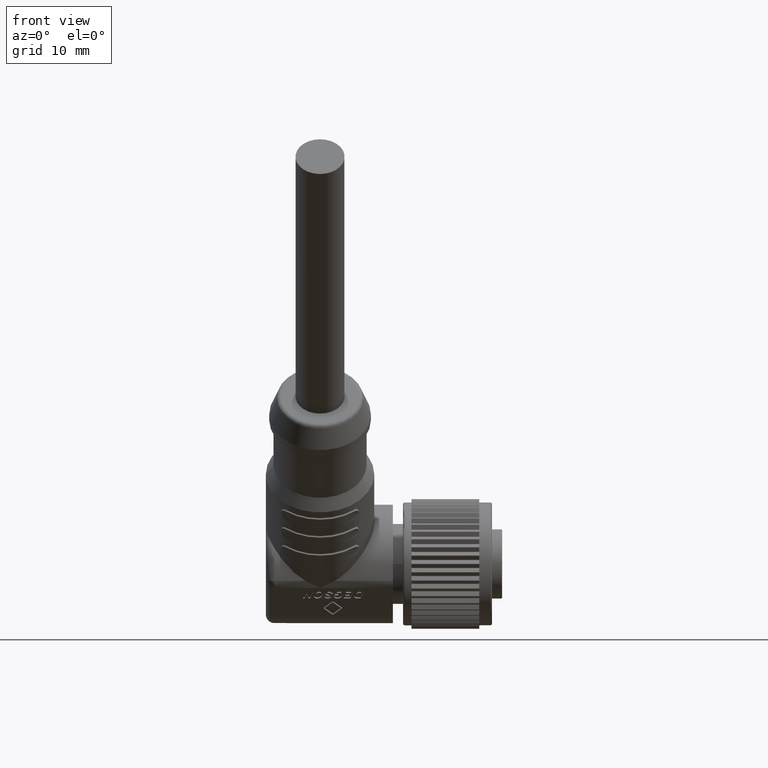
[diagram: clean part render]
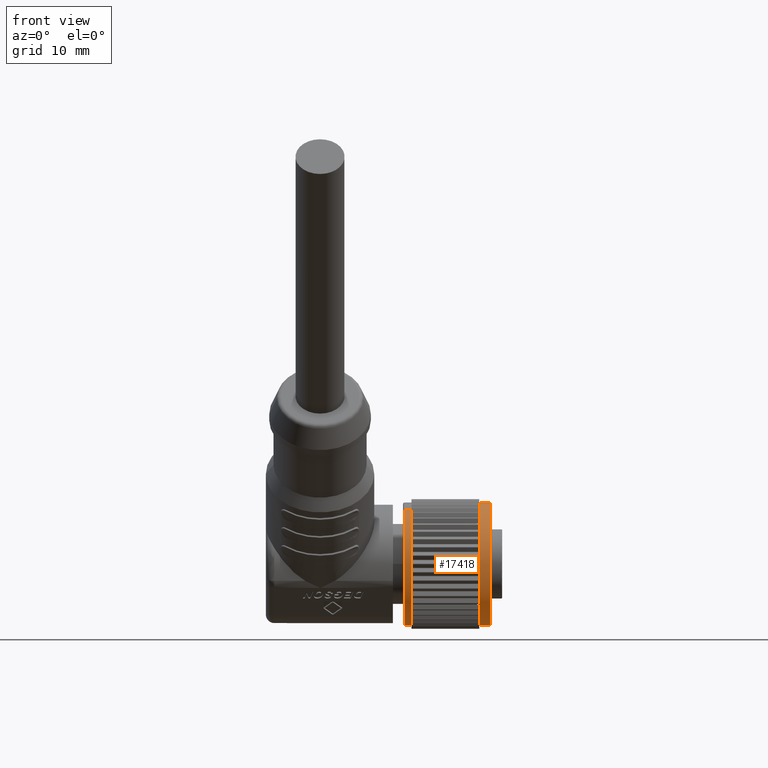
[diagram: same view with one face highlighted and labeled with its STEP entity id]
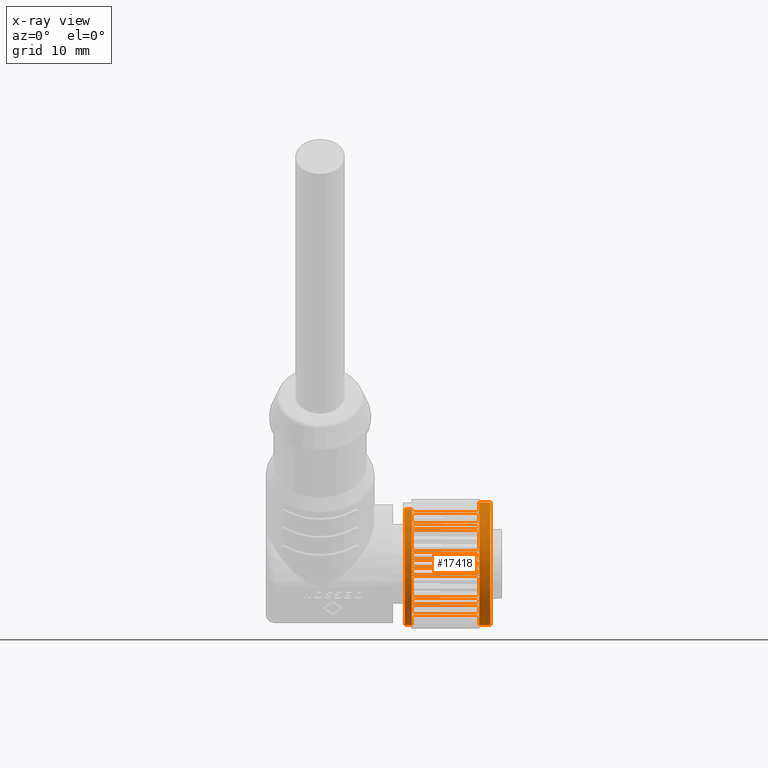
[diagram: x-ray of the same camera — body ghosted, the highlighted face saturated]
A machine part, front view. The second image highlights one B-rep face of the part: STEP entity #17418.
The next image is the same camera in x-ray: the body ghosted, the highlighted face saturated — about 0% of this face is hidden behind the body in this view.
In plain terms, the highlighted cylindrical surface (partial cylindrical patch) has radius 7.25 mm, axis along (-1, 0, 0).
Its self-contained STEP definition (entity closure, byte-faithful):
#54=DIRECTION('',(1.E0,-1.001532190514E-11,5.138112157965E-12));
#55=VECTOR('',#54,8.E-1);
#56=CARTESIAN_POINT('',(-1.15E1,3.310589071459E0,6.449999999995E0));
#57=LINE('',#56,#55);
#58=CARTESIAN_POINT('',(-1.07E1,0.E0,0.E0));
#59=DIRECTION('',(1.E0,0.E0,0.E0));
#60=DIRECTION('',(0.E0,4.445696119862E-1,8.957443050885E-1));
#61=AXIS2_PLACEMENT_3D('',#58,#59,#60);
#63=CARTESIAN_POINT('',(-1.07E1,0.E0,0.E0));
#64=DIRECTION('',(1.E0,0.E0,0.E0));
#65=DIRECTION('',(0.E0,3.238481639806E-1,9.461090670141E-1));
#66=AXIS2_PLACEMENT_3D('',#63,#64,#65);
#68=CARTESIAN_POINT('',(-1.07E1,0.E0,0.E0));
#69=DIRECTION('',(1.E0,0.E0,0.E0));
#70=DIRECTION('',(0.E0,1.975855841017E-1,9.802856404922E-1));
#71=AXIS2_PLACEMENT_3D('',#68,#69,#70);
#73=CARTESIAN_POINT('',(-1.07E1,0.E0,0.E0));
#74=DIRECTION('',(1.E0,0.E0,0.E0));
#75=DIRECTION('',(0.E0,6.794226009775E-2,9.976892548749E-1));
#76=AXIS2_PLACEMENT_3D('',#73,#74,#75);
#78=CARTESIAN_POINT('',(-1.07E1,0.E0,0.E0));
#79=DIRECTION('',(1.E0,0.E0,0.E0));
#80=DIRECTION('',(0.E0,-6.286357481365E-2,9.980221294950E-1));
#81=AXIS2_PLACEMENT_3D('',#78,#79,#80);
#83=CARTESIAN_POINT('',(-1.07E1,0.E0,0.E0));
#84=DIRECTION('',(1.E0,0.E0,0.E0));
#85=DIRECTION('',(0.E0,-1.925937965309E-1,9.812785687754E-1));
#86=AXIS2_PLACEMENT_3D('',#83,#84,#85);
#88=CARTESIAN_POINT('',(-1.07E1,0.E0,0.E0));
#89=DIRECTION('',(1.E0,0.E0,0.E0));
#90=DIRECTION('',(0.E0,-3.190286849924E-1,9.477450596822E-1));
#91=AXIS2_PLACEMENT_3D('',#88,#89,#90);
#93=CARTESIAN_POINT('',(-1.07E1,0.E0,0.E0));
#94=DIRECTION('',(1.E0,0.E0,0.E0));
#95=DIRECTION('',(0.E0,-4.400049042023E-1,8.979953698533E-1));
#96=AXIS2_PLACEMENT_3D('',#93,#94,#95);
#98=DIRECTION('',(1.E0,-2.053912595557E-13,-1.054711873394E-13));
#99=VECTOR('',#98,8.E-1);
#100=CARTESIAN_POINT('',(-1.15E1,-3.310589071450E0,6.449999999999E0));
#101=LINE('',#100,#99);
#102=DIRECTION('',(1.E0,0.E0,0.E0));
#103=VECTOR('',#102,8.E0);
#104=CARTESIAN_POINT('',(-1.07E1,-4.012530751939E0,6.038385294493E0));
#105=LINE('',#104,#103);
#106=DIRECTION('',(-1.E0,0.E0,0.E0));
#107=VECTOR('',#106,8.E0);
#108=CARTESIAN_POINT('',(-2.7E0,-3.223129686900E0,6.494146211891E0));
#109=LINE('',#108,#107);
#110=DIRECTION('',(1.E0,1.398881011028E-14,0.E0));
#111=VECTOR('',#110,8.E0);
#112=CARTESIAN_POINT('',(-1.07E1,-3.190035555466E0,6.510466431436E0));
#113=LINE('',#112,#111);
#114=DIRECTION('',(-1.E0,1.276756478319E-14,0.E0));
#115=VECTOR('',#114,8.E0);
#116=CARTESIAN_POINT('',(-2.7E0,-2.347899188860E0,6.859290735852E0));
#117=LINE('',#116,#115);
#118=DIRECTION('',(1.E0,0.E0,0.E0));
#119=VECTOR('',#118,8.E0);
#120=CARTESIAN_POINT('',(-1.07E1,-2.312957966195E0,6.871151682696E0));
#121=LINE('',#120,#119);
#122=DIRECTION('',(-1.E0,0.E0,0.E0));
#123=VECTOR('',#122,8.E0);
#124=CARTESIAN_POINT('',(-2.7E0,-1.432495484737E0,7.107070893568E0));
#125=LINE('',#124,#123);
#126=DIRECTION('',(1.E0,0.E0,0.E0));
#127=VECTOR('',#126,8.E0);
#128=CARTESIAN_POINT('',(-1.07E1,-1.396305024849E0,7.114269623621E0));
#129=LINE('',#128,#127);
#130=DIRECTION('',(-1.E0,0.E0,0.E0));
#131=VECTOR('',#130,8.E0);
#132=CARTESIAN_POINT('',(-2.7E0,-4.925813857089E-1,7.233247097843E0));
#133=LINE('',#132,#131);
#134=DIRECTION('',(1.E0,0.E0,0.E0));
#135=VECTOR('',#134,8.E0);
#136=CARTESIAN_POINT('',(-1.07E1,-4.557609173988E-1,7.235660438838E0));
#137=LINE('',#136,#135);
#138=DIRECTION('',(1.E0,0.E0,0.E0));
#139=VECTOR('',#138,1.3E0);
#140=CARTESIAN_POINT('',(-2.7E0,1.672751498285E-14,7.25E0));
#141=LINE('',#140,#139);
#142=DIRECTION('',(-1.E0,0.E0,0.E0));
#143=VECTOR('',#142,8.E0);
#144=CARTESIAN_POINT('',(-2.7E0,4.557609173991E-1,7.235660438838E0));
#145=LINE('',#144,#143);
#146=DIRECTION('',(1.E0,0.E0,0.E0));
#147=VECTOR('',#146,8.E0);
#148=CARTESIAN_POINT('',(-1.07E1,4.925813857087E-1,7.233247097843E0));
#149=LINE('',#148,#147);
#150=DIRECTION('',(-1.E0,0.E0,0.E0));
#151=VECTOR('',#150,8.E0);
#152=CARTESIAN_POINT('',(-2.7E0,1.396305024849E0,7.114269623621E0));
#153=LINE('',#152,#151);
#154=DIRECTION('',(1.E0,4.946043574705E-14,0.E0));
#155=VECTOR('',#154,8.E0);
#156=CARTESIAN_POINT('',(-1.07E1,1.432495484738E0,7.107070893568E0));
#157=LINE('',#156,#155);
#158=DIRECTION('',(-1.E0,1.343369859796E-14,0.E0));
#159=VECTOR('',#158,8.E0);
#160=CARTESIAN_POINT('',(-2.7E0,2.312957966195E0,6.871151682696E0));
#161=LINE('',#160,#159);
#162=DIRECTION('',(1.E0,0.E0,0.E0));
#163=VECTOR('',#162,8.E0);
#164=CARTESIAN_POINT('',(-1.07E1,2.347899188860E0,6.859290735853E0));
#165=LINE('',#164,#163);
#166=DIRECTION('',(-1.E0,-1.010302952409E-14,0.E0));
#167=VECTOR('',#166,8.E0);
#168=CARTESIAN_POINT('',(-2.7E0,3.190035555467E0,6.510466431436E0));
#169=LINE('',#168,#167);
#170=DIRECTION('',(1.E0,0.E0,0.E0));
#171=VECTOR('',#170,8.E0);
#172=CARTESIAN_POINT('',(-1.07E1,3.223129686900E0,6.494146211892E0));
#173=LINE('',#172,#171);
#174=DIRECTION('',(-1.E0,0.E0,0.E0));
#175=VECTOR('',#174,8.E0);
#176=CARTESIAN_POINT('',(-2.7E0,4.012530751939E0,6.038385294493E0));
#177=LINE('',#176,#175);
#178=DIRECTION('',(1.E0,0.E0,0.E0));
#179=VECTOR('',#178,8.E0);
#180=CARTESIAN_POINT('',(-1.07E1,4.012530751939E0,-6.038385294493E0));
#181=LINE('',#180,#179);
#182=DIRECTION('',(-1.E0,0.E0,0.E0));
#183=VECTOR('',#182,8.E0);
#184=CARTESIAN_POINT('',(-2.7E0,3.223129686900E0,-6.494146211891E0));
#185=LINE('',#184,#183);
#186=DIRECTION('',(1.E0,0.E0,0.E0));
#187=VECTOR('',#186,8.E0);
#188=CARTESIAN_POINT('',(-1.07E1,7.235660438838E0,4.557609173988E-1));
#189=LINE('',#188,#187);
#190=DIRECTION('',(-1.E0,0.E0,0.E0));
#191=VECTOR('',#190,8.E0);
#192=CARTESIAN_POINT('',(-2.7E0,7.235660438838E0,-4.557609173991E-1));
#193=LINE('',#192,#191);
#194=DIRECTION('',(1.E0,0.E0,0.E0));
#195=VECTOR('',#194,8.E0);
#196=CARTESIAN_POINT('',(-1.07E1,-7.235660438838E0,-4.557609173988E-1));
#197=LINE('',#196,#195);
#198=DIRECTION('',(-1.E0,0.E0,0.E0));
#199=VECTOR('',#198,8.E0);
#200=CARTESIAN_POINT('',(-2.7E0,-7.235660438838E0,4.557609173991E-1));
#201=LINE('',#200,#199);
#202=DIRECTION('',(-1.E0,0.E0,0.E0));
#203=VECTOR('',#202,8.E0);
#204=CARTESIAN_POINT('',(-2.7E0,-1.396305024849E0,-7.114269623621E0));
#205=LINE('',#204,#203);
#206=DIRECTION('',(1.E0,0.E0,0.E0));
#207=VECTOR('',#206,8.E0);
#208=CARTESIAN_POINT('',(-1.07E1,-4.925813857087E-1,-7.233247097843E0));
#209=LINE('',#208,#207);
#210=DIRECTION('',(-1.E0,0.E0,0.E0));
#211=VECTOR('',#210,8.E0);
#212=CARTESIAN_POINT('',(-2.7E0,-2.312957966195E0,-6.871151682696E0));
#213=LINE('',#212,#211);
#214=DIRECTION('',(1.E0,-3.005928839173E-14,0.E0));
#215=VECTOR('',#214,8.E0);
#216=CARTESIAN_POINT('',(-1.07E1,-1.432495484738E0,-7.107070893568E0));
#217=LINE('',#216,#215);
#218=DIRECTION('',(-1.E0,0.E0,0.E0));
#219=VECTOR('',#218,8.E0);
#220=CARTESIAN_POINT('',(-2.7E0,-3.190035555467E0,-6.510466431436E0));
#221=LINE('',#220,#219);
#222=DIRECTION('',(1.E0,0.E0,0.E0));
#223=VECTOR('',#222,8.E0);
#224=CARTESIAN_POINT('',(-1.07E1,-2.347899188860E0,-6.859290735853E0));
#225=LINE('',#224,#223);
#226=DIRECTION('',(-1.E0,0.E0,0.E0));
#227=VECTOR('',#226,8.E0);
#228=CARTESIAN_POINT('',(-2.7E0,-4.766370434762E0,-5.462985711004E0));
#229=LINE('',#228,#227);
#230=DIRECTION('',(1.E0,0.E0,0.E0));
#231=VECTOR('',#230,8.E0);
#232=CARTESIAN_POINT('',(-1.07E1,-4.043211542377E0,-6.017885045728E0));
#233=LINE('',#232,#231);
#234=DIRECTION('',(-1.E0,0.E0,0.E0));
#235=VECTOR('',#234,8.E0);
#236=CARTESIAN_POINT('',(-2.7E0,-5.438656197958E0,-4.794112927373E0));
#237=LINE('',#236,#235);
#238=DIRECTION('',(1.E0,0.E0,0.E0));
#239=VECTOR('',#238,8.E0);
#240=CARTESIAN_POINT('',(-1.07E1,-4.794112927373E0,-5.438656197958E0));
#241=LINE('',#240,#239);
#242=DIRECTION('',(-1.E0,0.E0,0.E0));
#243=VECTOR('',#242,8.E0);
#244=CARTESIAN_POINT('',(-2.7E0,-6.017885045728E0,-4.043211542377E0));
#245=LINE('',#244,#243);
#246=DIRECTION('',(1.E0,0.E0,0.E0));
#247=VECTOR('',#246,8.E0);
#248=CARTESIAN_POINT('',(-1.07E1,-5.462985711004E0,-4.766370434762E0));
#249=LINE('',#248,#247);
#250=DIRECTION('',(-1.E0,0.E0,0.E0));
#251=VECTOR('',#250,8.E0);
#252=CARTESIAN_POINT('',(-2.7E0,-6.494146211891E0,-3.223129686900E0));
#253=LINE('',#252,#251);
#254=DIRECTION('',(1.E0,0.E0,0.E0));
#255=VECTOR('',#254,8.E0);
#256=CARTESIAN_POINT('',(-1.07E1,-6.038385294493E0,-4.012530751939E0));
#257=LINE('',#256,#255);
#258=DIRECTION('',(-1.E0,0.E0,0.E0));
#259=VECTOR('',#258,8.E0);
#260=CARTESIAN_POINT('',(-2.7E0,-6.859290735852E0,-2.347899188860E0));
#261=LINE('',#260,#259);
#262=DIRECTION('',(1.E0,0.E0,0.E0));
#263=VECTOR('',#262,8.E0);
#264=CARTESIAN_POINT('',(-1.07E1,-6.510466431436E0,-3.190035555466E0));
#265=LINE('',#264,#263);
#266=DIRECTION('',(-1.E0,0.E0,0.E0));
#267=VECTOR('',#266,8.E0);
#268=CARTESIAN_POINT('',(-2.7E0,-7.107070893568E0,-1.432495484737E0));
#269=LINE('',#268,#267);
#270=DIRECTION('',(1.E0,0.E0,0.E0));
#271=VECTOR('',#270,8.E0);
#272=CARTESIAN_POINT('',(-1.07E1,-6.871151682696E0,-2.312957966195E0));
#273=LINE('',#272,#271);
#274=DIRECTION('',(-1.E0,0.E0,0.E0));
#275=VECTOR('',#274,8.E0);
#276=CARTESIAN_POINT('',(-2.7E0,-7.233247097843E0,-4.925813857089E-1));
#277=LINE('',#276,#275);
#278=DIRECTION('',(1.E0,0.E0,0.E0));
#279=VECTOR('',#278,8.E0);
#280=CARTESIAN_POINT('',(-1.07E1,-7.114269623621E0,-1.396305024849E0));
#281=LINE('',#280,#279);
#282=DIRECTION('',(-1.E0,0.E0,0.E0));
#283=VECTOR('',#282,8.E0);
#284=CARTESIAN_POINT('',(-2.7E0,-7.114269623621E0,1.396305024849E0));
#285=LINE('',#284,#283);
#286=DIRECTION('',(1.E0,0.E0,0.E0));
#287=VECTOR('',#286,8.E0);
#288=CARTESIAN_POINT('',(-1.07E1,-7.233247097843E0,4.925813857087E-1));
#289=LINE('',#288,#287);
#290=DIRECTION('',(-1.E0,0.E0,0.E0));
#291=VECTOR('',#290,8.E0);
#292=CARTESIAN_POINT('',(-2.7E0,-6.871151682696E0,2.312957966195E0));
#293=LINE('',#292,#291);
#294=DIRECTION('',(1.E0,0.E0,0.E0));
#295=VECTOR('',#294,8.E0);
#296=CARTESIAN_POINT('',(-1.07E1,-7.107070893568E0,1.432495484737E0));
#297=LINE('',#296,#295);
#298=DIRECTION('',(-1.E0,0.E0,0.E0));
#299=VECTOR('',#298,8.E0);
#300=CARTESIAN_POINT('',(-2.7E0,-6.510466431436E0,3.190035555467E0));
#301=LINE('',#300,#299);
#302=DIRECTION('',(1.E0,0.E0,0.E0));
#303=VECTOR('',#302,8.E0);
#304=CARTESIAN_POINT('',(-1.07E1,-6.859290735853E0,2.347899188860E0));
#305=LINE('',#304,#303);
#306=DIRECTION('',(-1.E0,0.E0,0.E0));
#307=VECTOR('',#306,8.E0);
#308=CARTESIAN_POINT('',(-2.7E0,-6.038385294493E0,4.012530751939E0));
#309=LINE('',#308,#307);
#310=DIRECTION('',(1.E0,0.E0,0.E0));
#311=VECTOR('',#310,8.E0);
#312=CARTESIAN_POINT('',(-1.07E1,-6.494146211892E0,3.223129686900E0));
#313=LINE('',#312,#311);
#314=DIRECTION('',(-1.E0,0.E0,0.E0));
#315=VECTOR('',#314,8.E0);
#316=CARTESIAN_POINT('',(-2.7E0,-5.462985711004E0,4.766370434762E0));
#317=LINE('',#316,#315);
#318=DIRECTION('',(1.E0,0.E0,0.E0));
#319=VECTOR('',#318,8.E0);
#320=CARTESIAN_POINT('',(-1.07E1,-6.017885045728E0,4.043211542377E0));
#321=LINE('',#320,#319);
#322=DIRECTION('',(-1.E0,0.E0,0.E0));
#323=VECTOR('',#322,8.E0);
#324=CARTESIAN_POINT('',(-2.7E0,-4.794112927373E0,5.438656197958E0));
#325=LINE('',#324,#323);
#326=DIRECTION('',(1.E0,0.E0,0.E0));
#327=VECTOR('',#326,8.E0);
#328=CARTESIAN_POINT('',(-1.07E1,-5.438656197958E0,4.794112927373E0));
#329=LINE('',#328,#327);
#330=DIRECTION('',(-1.E0,0.E0,0.E0));
#331=VECTOR('',#330,8.E0);
#332=CARTESIAN_POINT('',(-2.7E0,-4.043211542377E0,6.017885045728E0));
#333=LINE('',#332,#331);
#334=DIRECTION('',(1.E0,0.E0,0.E0));
#335=VECTOR('',#334,8.E0);
#336=CARTESIAN_POINT('',(-1.07E1,-4.766370434762E0,5.462985711004E0));
#337=LINE('',#336,#335);
#338=DIRECTION('',(-1.E0,0.E0,0.E0));
#339=VECTOR('',#338,8.E0);
#340=CARTESIAN_POINT('',(-2.7E0,2.347899188860E0,-6.859290735852E0));
#341=LINE('',#340,#339);
#342=DIRECTION('',(1.E0,0.E0,0.E0));
#343=VECTOR('',#342,8.E0);
#344=CARTESIAN_POINT('',(-1.07E1,3.190035555466E0,-6.510466431436E0));
#345=LINE('',#344,#343);
#346=DIRECTION('',(-1.E0,0.E0,0.E0));
#347=VECTOR('',#346,8.E0);
#348=CARTESIAN_POINT('',(-2.7E0,1.432495484737E0,-7.107070893568E0));
#349=LINE('',#348,#347);
#350=DIRECTION('',(1.E0,0.E0,0.E0));
#351=VECTOR('',#350,8.E0);
#352=CARTESIAN_POINT('',(-1.07E1,2.312957966195E0,-6.871151682696E0));
#353=LINE('',#352,#351);
#354=DIRECTION('',(-1.E0,0.E0,0.E0));
#355=VECTOR('',#354,8.E0);
#356=CARTESIAN_POINT('',(-2.7E0,4.925813857089E-1,-7.233247097843E0));
#357=LINE('',#356,#355);
#358=DIRECTION('',(1.E0,0.E0,0.E0));
#359=VECTOR('',#358,8.E0);
#360=CARTESIAN_POINT('',(-1.07E1,1.396305024849E0,-7.114269623621E0));
#361=LINE('',#360,#359);
#362=DIRECTION('',(-1.E0,0.E0,0.E0));
#363=VECTOR('',#362,8.E0);
#364=CARTESIAN_POINT('',(-2.7E0,7.114269623621E0,-1.396305024849E0));
#365=LINE('',#364,#363);
#366=DIRECTION('',(1.E0,0.E0,0.E0));
#367=VECTOR('',#366,8.E0);
#368=CARTESIAN_POINT('',(-1.07E1,7.233247097843E0,-4.925813857087E-1));
#369=LINE('',#368,#367);
#370=DIRECTION('',(-1.E0,0.E0,0.E0));
#371=VECTOR('',#370,8.E0);
#372=CARTESIAN_POINT('',(-2.7E0,6.871151682696E0,-2.312957966195E0));
#373=LINE('',#372,#371);
#374=DIRECTION('',(1.E0,0.E0,0.E0));
#375=VECTOR('',#374,8.E0);
#376=CARTESIAN_POINT('',(-1.07E1,7.107070893568E0,-1.432495484737E0));
#377=LINE('',#376,#375);
#378=DIRECTION('',(-1.E0,0.E0,0.E0));
#379=VECTOR('',#378,8.E0);
#380=CARTESIAN_POINT('',(-2.7E0,6.510466431436E0,-3.190035555467E0));
#381=LINE('',#380,#379);
#382=DIRECTION('',(1.E0,0.E0,0.E0));
#383=VECTOR('',#382,8.E0);
#384=CARTESIAN_POINT('',(-1.07E1,6.859290735853E0,-2.347899188860E0));
#385=LINE('',#384,#383);
#386=DIRECTION('',(-1.E0,0.E0,0.E0));
#387=VECTOR('',#386,8.E0);
#388=CARTESIAN_POINT('',(-2.7E0,6.038385294493E0,-4.012530751939E0));
#389=LINE('',#388,#387);
#390=DIRECTION('',(1.E0,0.E0,0.E0));
#391=VECTOR('',#390,8.E0);
#392=CARTESIAN_POINT('',(-1.07E1,6.494146211892E0,-3.223129686900E0));
#393=LINE('',#392,#391);
#394=DIRECTION('',(-1.E0,0.E0,0.E0));
#395=VECTOR('',#394,8.E0);
#396=CARTESIAN_POINT('',(-2.7E0,5.462985711004E0,-4.766370434762E0));
#397=LINE('',#396,#395);
#398=DIRECTION('',(1.E0,0.E0,0.E0));
#399=VECTOR('',#398,8.E0);
#400=CARTESIAN_POINT('',(-1.07E1,6.017885045728E0,-4.043211542377E0));
#401=LINE('',#400,#399);
#402=DIRECTION('',(-1.E0,0.E0,0.E0));
#403=VECTOR('',#402,8.E0);
#404=CARTESIAN_POINT('',(-2.7E0,4.794112927373E0,-5.438656197958E0));
#405=LINE('',#404,#403);
#406=DIRECTION('',(1.E0,0.E0,0.E0));
#407=VECTOR('',#406,8.E0);
#408=CARTESIAN_POINT('',(-1.07E1,5.438656197958E0,-4.794112927373E0));
#409=LINE('',#408,#407);
#410=DIRECTION('',(-1.E0,0.E0,0.E0));
#411=VECTOR('',#410,8.E0);
#412=CARTESIAN_POINT('',(-2.7E0,4.043211542377E0,-6.017885045728E0));
#413=LINE('',#412,#411);
#414=DIRECTION('',(1.E0,0.E0,0.E0));
#415=VECTOR('',#414,8.E0);
#416=CARTESIAN_POINT('',(-1.07E1,4.766370434762E0,-5.462985711004E0));
#417=LINE('',#416,#415);
#418=DIRECTION('',(-1.E0,0.E0,0.E0));
#419=VECTOR('',#418,8.E0);
#420=CARTESIAN_POINT('',(-2.7E0,4.766370434762E0,5.462985711004E0));
#421=LINE('',#420,#419);
#422=DIRECTION('',(1.E0,0.E0,0.E0));
#423=VECTOR('',#422,8.E0);
#424=CARTESIAN_POINT('',(-1.07E1,4.043211542377E0,6.017885045728E0));
#425=LINE('',#424,#423);
#426=DIRECTION('',(-1.E0,0.E0,0.E0));
#427=VECTOR('',#426,8.E0);
#428=CARTESIAN_POINT('',(-2.7E0,5.438656197958E0,4.794112927373E0));
#429=LINE('',#428,#427);
#430=DIRECTION('',(1.E0,0.E0,0.E0));
#431=VECTOR('',#430,8.E0);
#432=CARTESIAN_POINT('',(-1.07E1,4.794112927373E0,5.438656197958E0));
#433=LINE('',#432,#431);
#434=DIRECTION('',(-1.E0,0.E0,0.E0));
#435=VECTOR('',#434,8.E0);
#436=CARTESIAN_POINT('',(-2.7E0,6.017885045728E0,4.043211542377E0));
#437=LINE('',#436,#435);
#438=DIRECTION('',(1.E0,0.E0,0.E0));
#439=VECTOR('',#438,8.E0);
#440=CARTESIAN_POINT('',(-1.07E1,5.462985711004E0,4.766370434762E0));
#441=LINE('',#440,#439);
#442=DIRECTION('',(-1.E0,0.E0,0.E0));
#443=VECTOR('',#442,8.E0);
#444=CARTESIAN_POINT('',(-2.7E0,6.494146211891E0,3.223129686900E0));
#445=LINE('',#444,#443);
#446=DIRECTION('',(1.E0,0.E0,0.E0));
#447=VECTOR('',#446,8.E0);
#448=CARTESIAN_POINT('',(-1.07E1,6.038385294493E0,4.012530751939E0));
#449=LINE('',#448,#447);
#450=DIRECTION('',(-1.E0,0.E0,0.E0));
#451=VECTOR('',#450,8.E0);
#452=CARTESIAN_POINT('',(-2.7E0,6.859290735852E0,2.347899188860E0));
#453=LINE('',#452,#451);
#454=DIRECTION('',(1.E0,0.E0,0.E0));
#455=VECTOR('',#454,8.E0);
#456=CARTESIAN_POINT('',(-1.07E1,6.510466431436E0,3.190035555466E0));
#457=LINE('',#456,#455);
#458=DIRECTION('',(-1.E0,0.E0,0.E0));
#459=VECTOR('',#458,8.E0);
#460=CARTESIAN_POINT('',(-2.7E0,7.107070893568E0,1.432495484737E0));
#461=LINE('',#460,#459);
#462=DIRECTION('',(1.E0,0.E0,0.E0));
#463=VECTOR('',#462,8.E0);
#464=CARTESIAN_POINT('',(-1.07E1,6.871151682696E0,2.312957966195E0));
#465=LINE('',#464,#463);
#466=DIRECTION('',(-1.E0,0.E0,0.E0));
#467=VECTOR('',#466,8.E0);
#468=CARTESIAN_POINT('',(-2.7E0,7.233247097843E0,4.925813857089E-1));
#469=LINE('',#468,#467);
#470=DIRECTION('',(1.E0,0.E0,0.E0));
#471=VECTOR('',#470,8.E0);
#472=CARTESIAN_POINT('',(-1.07E1,7.114269623621E0,1.396305024849E0));
#473=LINE('',#472,#471);
#474=DIRECTION('',(-1.E0,0.E0,0.E0));
#475=VECTOR('',#474,8.E0);
#476=CARTESIAN_POINT('',(-2.7E0,-4.557609173991E-1,-7.235660438838E0));
#477=LINE('',#476,#475);
#478=DIRECTION('',(1.E0,0.E0,0.E0));
#479=VECTOR('',#478,8.E0);
#480=CARTESIAN_POINT('',(-1.07E1,4.557609173988E-1,-7.235660438838E0));
#481=LINE('',#480,#479);
#482=DIRECTION('',(1.E0,0.E0,0.E0));
#483=VECTOR('',#482,8.E0);
#484=CARTESIAN_POINT('',(-1.07E1,-3.223129686900E0,-6.494146211892E0));
#485=LINE('',#484,#483);
#486=DIRECTION('',(-1.E0,0.E0,0.E0));
#487=VECTOR('',#486,8.E0);
#488=CARTESIAN_POINT('',(-2.7E0,-4.012530751939E0,-6.038385294493E0));
#489=LINE('',#488,#487);
#490=CARTESIAN_POINT('',(-1.15E1,0.E0,0.E0));
#491=DIRECTION('',(1.E0,0.E0,0.E0));
#492=DIRECTION('',(0.E0,-4.566329753726E-1,8.896551724136E-1));
#493=AXIS2_PLACEMENT_3D('',#490,#491,#492);
#495=CARTESIAN_POINT('',(-1.15E1,0.E0,0.E0));
#496=DIRECTION('',(1.E0,0.E0,0.E0));
#497=DIRECTION('',(0.E0,-1.E0,0.E0));
#498=AXIS2_PLACEMENT_3D('',#495,#496,#497);
#500=CARTESIAN_POINT('',(-1.15E1,0.E0,0.E0));
#501=DIRECTION('',(1.E0,0.E0,0.E0));
#502=DIRECTION('',(0.E0,4.566329753723E-1,-8.896551724138E-1));
#503=AXIS2_PLACEMENT_3D('',#500,#501,#502);
#505=CARTESIAN_POINT('',(-1.15E1,0.E0,0.E0));
#506=DIRECTION('',(1.E0,0.E0,0.E0));
#507=DIRECTION('',(0.E0,1.E0,0.E0));
#508=AXIS2_PLACEMENT_3D('',#505,#506,#507);
#515=CARTESIAN_POINT('',(-1.07E1,0.E0,0.E0));
#516=DIRECTION('',(-1.E0,0.E0,0.E0));
#517=DIRECTION('',(0.E0,-5.534525175088E-1,8.328807302748E-1));
#518=AXIS2_PLACEMENT_3D('',#515,#516,#517);
#543=CARTESIAN_POINT('',(-2.7E0,0.E0,0.E0));
#544=DIRECTION('',(1.E0,0.E0,0.E0));
#545=DIRECTION('',(0.E0,-4.445696119862E-1,8.957443050885E-1));
#546=AXIS2_PLACEMENT_3D('',#543,#544,#545);
#597=CARTESIAN_POINT('',(-2.7E0,0.E0,0.E0));
#598=DIRECTION('',(1.E0,0.E0,0.E0));
#599=DIRECTION('',(0.E0,-3.238481639807E-1,9.461090670141E-1));
#600=AXIS2_PLACEMENT_3D('',#597,#598,#599);
#651=CARTESIAN_POINT('',(-2.7E0,0.E0,0.E0));
#652=DIRECTION('',(1.E0,0.E0,0.E0));
#653=DIRECTION('',(0.E0,-1.975855841017E-1,9.802856404922E-1));
#654=AXIS2_PLACEMENT_3D('',#651,#652,#653);
#705=CARTESIAN_POINT('',(-2.7E0,0.E0,0.E0));
#706=DIRECTION('',(1.E0,0.E0,0.E0));
#707=DIRECTION('',(0.E0,-6.794226009782E-2,9.976892548749E-1));
#708=AXIS2_PLACEMENT_3D('',#705,#706,#707);
#787=CARTESIAN_POINT('',(-2.7E0,0.E0,0.E0));
#788=DIRECTION('',(1.E0,0.E0,0.E0));
#789=DIRECTION('',(0.E0,0.E0,1.E0));
#790=AXIS2_PLACEMENT_3D('',#787,#788,#789);
#800=DIRECTION('',(1.E0,-2.755061136493E-13,2.596213842200E-14));
#801=VECTOR('',#800,1.3E0);
#802=CARTESIAN_POINT('',(-2.7E0,4.557609173991E-1,7.235660438838E0));
#803=LINE('',#802,#801);
#814=CARTESIAN_POINT('',(-1.4E0,0.E0,0.E0));
#815=DIRECTION('',(-1.E0,0.E0,0.E0));
#816=DIRECTION('',(0.E0,6.286357481364E-2,9.980221294950E-1));
#817=AXIS2_PLACEMENT_3D('',#814,#815,#816);
#819=CARTESIAN_POINT('',(-1.4E0,0.E0,0.E0));
#820=DIRECTION('',(-1.E0,0.E0,0.E0));
#821=DIRECTION('',(0.E0,1.E0,0.E0));
#822=AXIS2_PLACEMENT_3D('',#819,#820,#821);
#824=CARTESIAN_POINT('',(-1.4E0,0.E0,0.E0));
#825=DIRECTION('',(-1.E0,0.E0,0.E0));
#826=DIRECTION('',(0.E0,-6.286357481364E-2,-9.980221294950E-1));
#827=AXIS2_PLACEMENT_3D('',#824,#825,#826);
#829=CARTESIAN_POINT('',(-1.4E0,0.E0,0.E0));
#830=DIRECTION('',(-1.E0,0.E0,0.E0));
#831=DIRECTION('',(0.E0,-1.E0,0.E0));
#832=AXIS2_PLACEMENT_3D('',#829,#830,#831);
#2488=CARTESIAN_POINT('',(-2.7E0,0.E0,0.E0));
#2489=DIRECTION('',(1.E0,0.E0,0.E0));
#2490=DIRECTION('',(0.E0,1.925937965310E-1,9.812785687753E-1));
#2491=AXIS2_PLACEMENT_3D('',#2488,#2489,#2490);
#2542=CARTESIAN_POINT('',(-2.7E0,0.E0,0.E0));
#2543=DIRECTION('',(1.E0,0.E0,0.E0));
#2544=DIRECTION('',(0.E0,3.190286849923E-1,9.477450596822E-1));
#2545=AXIS2_PLACEMENT_3D('',#2542,#2543,#2544);
#2596=CARTESIAN_POINT('',(-2.7E0,0.E0,0.E0));
#2597=DIRECTION('',(1.E0,0.E0,0.E0));
#2598=DIRECTION('',(0.E0,4.400049042024E-1,8.979953698533E-1));
#2599=AXIS2_PLACEMENT_3D('',#2596,#2597,#2598);
#2614=CARTESIAN_POINT('',(-1.07E1,0.E0,0.E0));
#2615=DIRECTION('',(-1.E0,0.E0,0.E0));
#2616=DIRECTION('',(0.E0,4.566329753723E-1,8.896551724138E-1));
#2617=AXIS2_PLACEMENT_3D('',#2614,#2615,#2616);
#2655=CARTESIAN_POINT('',(-2.7E0,0.E0,0.E0));
#2656=DIRECTION('',(1.E0,0.E0,0.E0));
#2657=DIRECTION('',(0.E0,5.534525175088E-1,8.328807302748E-1));
#2658=AXIS2_PLACEMENT_3D('',#2655,#2656,#2657);
#2668=CARTESIAN_POINT('',(-1.07E1,0.E0,0.E0));
#2669=DIRECTION('',(-1.E0,0.E0,0.E0));
#2670=DIRECTION('',(0.E0,5.534525175088E-1,-8.328807302748E-1));
#2671=AXIS2_PLACEMENT_3D('',#2668,#2669,#2670);
#2709=CARTESIAN_POINT('',(-2.7E0,0.E0,0.E0));
#2710=DIRECTION('',(1.E0,0.E0,0.E0));
#2711=DIRECTION('',(0.E0,4.445696119862E-1,-8.957443050885E-1));
#2712=AXIS2_PLACEMENT_3D('',#2709,#2710,#2711);
#2722=CARTESIAN_POINT('',(-1.07E1,0.E0,0.E0));
#2723=DIRECTION('',(-1.E0,0.E0,0.E0));
#2724=DIRECTION('',(0.E0,9.980221294950E-1,6.286357481358E-2));
#2725=AXIS2_PLACEMENT_3D('',#2722,#2723,#2724);
#2727=CARTESIAN_POINT('',(-1.07E1,0.E0,0.E0));
#2728=DIRECTION('',(-1.E0,0.E0,0.E0));
#2729=DIRECTION('',(0.E0,1.E0,0.E0));
#2730=AXIS2_PLACEMENT_3D('',#2727,#2728,#2729);
#2764=CARTESIAN_POINT('',(-2.7E0,0.E0,0.E0));
#2765=DIRECTION('',(1.E0,0.E0,0.E0));
#2766=DIRECTION('',(0.E0,9.980221294950E-1,-6.286357481369E-2));
#2767=AXIS2_PLACEMENT_3D('',#2764,#2765,#2766);
#2769=CARTESIAN_POINT('',(-2.7E0,0.E0,0.E0));
#2770=DIRECTION('',(1.E0,0.E0,0.E0));
#2771=DIRECTION('',(0.E0,1.E0,0.E0));
#2772=AXIS2_PLACEMENT_3D('',#2769,#2770,#2771);
#2786=CARTESIAN_POINT('',(-1.07E1,0.E0,0.E0));
#2787=DIRECTION('',(-1.E0,0.E0,0.E0));
#2788=DIRECTION('',(0.E0,-9.980221294950E-1,-6.286357481358E-2));
#2789=AXIS2_PLACEMENT_3D('',#2786,#2787,#2788);
#2791=CARTESIAN_POINT('',(-1.07E1,0.E0,0.E0));
#2792=DIRECTION('',(-1.E0,0.E0,0.E0));
#2793=DIRECTION('',(0.E0,-1.E0,0.E0));
#2794=AXIS2_PLACEMENT_3D('',#2791,#2792,#2793);
#2814=CARTESIAN_POINT('',(-2.7E0,0.E0,0.E0));
#2815=DIRECTION('',(1.E0,0.E0,0.E0));
#2816=DIRECTION('',(0.E0,-9.980221294950E-1,6.286357481369E-2));
#2817=AXIS2_PLACEMENT_3D('',#2814,#2815,#2816);
#2819=CARTESIAN_POINT('',(-2.7E0,0.E0,0.E0));
#2820=DIRECTION('',(1.E0,0.E0,0.E0));
#2821=DIRECTION('',(0.E0,-1.E0,0.E0));
#2822=AXIS2_PLACEMENT_3D('',#2819,#2820,#2821);
#2850=CARTESIAN_POINT('',(-1.07E1,0.E0,0.E0));
#2851=DIRECTION('',(-1.E0,0.E0,0.E0));
#2852=DIRECTION('',(0.E0,-6.794226009774E-2,-9.976892548749E-1));
#2853=AXIS2_PLACEMENT_3D('',#2850,#2851,#2852);
#2899=CARTESIAN_POINT('',(-2.7E0,0.E0,0.E0));
#2900=DIRECTION('',(1.E0,0.E0,0.E0));
#2901=DIRECTION('',(0.E0,-1.925937965310E-1,-9.812785687753E-1));
#2902=AXIS2_PLACEMENT_3D('',#2899,#2900,#2901);
#2904=CARTESIAN_POINT('',(-1.07E1,0.E0,0.E0));
#2905=DIRECTION('',(-1.E0,0.E0,0.E0));
#2906=DIRECTION('',(0.E0,-1.975855841017E-1,-9.802856404922E-1));
#2907=AXIS2_PLACEMENT_3D('',#2904,#2905,#2906);
#2953=CARTESIAN_POINT('',(-2.7E0,0.E0,0.E0));
#2954=DIRECTION('',(1.E0,0.E0,0.E0));
#2955=DIRECTION('',(0.E0,-3.190286849923E-1,-9.477450596822E-1));
#2956=AXIS2_PLACEMENT_3D('',#2953,#2954,#2955);
#2958=CARTESIAN_POINT('',(-1.07E1,0.E0,0.E0));
#2959=DIRECTION('',(-1.E0,0.E0,0.E0));
#2960=DIRECTION('',(0.E0,-3.238481639806E-1,-9.461090670142E-1));
#2961=AXIS2_PLACEMENT_3D('',#2958,#2959,#2960);
#2989=CARTESIAN_POINT('',(-2.7E0,0.E0,0.E0));
#2990=DIRECTION('',(1.E0,0.E0,0.E0));
#2991=DIRECTION('',(0.E0,-4.400049042024E-1,-8.979953698533E-1));
#2992=AXIS2_PLACEMENT_3D('',#2989,#2990,#2991);
#3012=CARTESIAN_POINT('',(-1.07E1,0.E0,0.E0));
#3013=DIRECTION('',(-1.E0,0.E0,0.E0));
#3014=DIRECTION('',(0.E0,-5.576843506726E-1,-8.300531097556E-1));
#3015=AXIS2_PLACEMENT_3D('',#3012,#3013,#3014);
#3057=CARTESIAN_POINT('',(-2.7E0,0.E0,0.E0));
#3058=DIRECTION('',(1.E0,0.E0,0.E0));
#3059=DIRECTION('',(0.E0,-6.574304047947E-1,-7.535152704833E-1));
#3060=AXIS2_PLACEMENT_3D('',#3057,#3058,#3059);
#3070=CARTESIAN_POINT('',(-1.07E1,0.E0,0.E0));
#3071=DIRECTION('',(-1.E0,0.E0,0.E0));
#3072=DIRECTION('',(0.E0,-6.612569554998E-1,-7.501594755804E-1));
#3073=AXIS2_PLACEMENT_3D('',#3070,#3071,#3072);
#3111=CARTESIAN_POINT('',(-2.7E0,0.E0,0.E0));
#3112=DIRECTION('',(1.E0,0.E0,0.E0));
#3113=DIRECTION('',(0.E0,-7.501594755804E-1,-6.612569554998E-1));
#3114=AXIS2_PLACEMENT_3D('',#3111,#3112,#3113);
#3120=CARTESIAN_POINT('',(-1.07E1,0.E0,0.E0));
#3121=DIRECTION('',(-1.E0,0.E0,0.E0));
#3122=DIRECTION('',(0.E0,-7.535152704832E-1,-6.574304047948E-1));
#3123=AXIS2_PLACEMENT_3D('',#3120,#3121,#3122);
#3165=CARTESIAN_POINT('',(-2.7E0,0.E0,0.E0));
#3166=DIRECTION('',(1.E0,0.E0,0.E0));
#3167=DIRECTION('',(0.E0,-8.300531097555E-1,-5.576843506727E-1));
#3168=AXIS2_PLACEMENT_3D('',#3165,#3166,#3167);
#3174=CARTESIAN_POINT('',(-1.07E1,0.E0,0.E0));
#3175=DIRECTION('',(-1.E0,0.E0,0.E0));
#3176=DIRECTION('',(0.E0,-8.328807302748E-1,-5.534525175088E-1));
#3177=AXIS2_PLACEMENT_3D('',#3174,#3175,#3176);
#3219=CARTESIAN_POINT('',(-2.7E0,0.E0,0.E0));
#3220=DIRECTION('',(1.E0,0.E0,0.E0));
#3221=DIRECTION('',(0.E0,-8.957443050885E-1,-4.445696119862E-1));
#3222=AXIS2_PLACEMENT_3D('',#3219,#3220,#3221);
#3228=CARTESIAN_POINT('',(-1.07E1,0.E0,0.E0));
#3229=DIRECTION('',(-1.E0,0.E0,0.E0));
#3230=DIRECTION('',(0.E0,-8.979953698533E-1,-4.400049042022E-1));
#3231=AXIS2_PLACEMENT_3D('',#3228,#3229,#3230);
#3277=CARTESIAN_POINT('',(-2.7E0,0.E0,0.E0));
#3278=DIRECTION('',(1.E0,0.E0,0.E0));
#3279=DIRECTION('',(0.E0,-9.461090670141E-1,-3.238481639807E-1));
#3280=AXIS2_PLACEMENT_3D('',#3277,#3278,#3279);
#3282=CARTESIAN_POINT('',(-1.07E1,0.E0,0.E0));
#3283=DIRECTION('',(-1.E0,0.E0,0.E0));
#3284=DIRECTION('',(0.E0,-9.477450596822E-1,-3.190286849924E-1));
#3285=AXIS2_PLACEMENT_3D('',#3282,#3283,#3284);
#3331=CARTESIAN_POINT('',(-2.7E0,0.E0,0.E0));
#3332=DIRECTION('',(1.E0,0.E0,0.E0));
#3333=DIRECTION('',(0.E0,-9.802856404922E-1,-1.975855841017E-1));
#3334=AXIS2_PLACEMENT_3D('',#3331,#3332,#3333);
#3336=CARTESIAN_POINT('',(-1.07E1,0.E0,0.E0));
#3337=DIRECTION('',(-1.E0,0.E0,0.E0));
#3338=DIRECTION('',(0.E0,-9.812785687754E-1,-1.925937965309E-1));
#3339=AXIS2_PLACEMENT_3D('',#3336,#3337,#3338);
#3385=CARTESIAN_POINT('',(-2.7E0,0.E0,0.E0));
#3386=DIRECTION('',(1.E0,0.E0,0.E0));
#3387=DIRECTION('',(0.E0,-9.976892548749E-1,-6.794226009782E-2));
#3388=AXIS2_PLACEMENT_3D('',#3385,#3386,#3387);
#3390=CARTESIAN_POINT('',(-1.07E1,0.E0,0.E0));
#3391=DIRECTION('',(-1.E0,0.E0,0.E0));
#3392=DIRECTION('',(0.E0,-9.976892548749E-1,6.794226009774E-2));
#3393=AXIS2_PLACEMENT_3D('',#3390,#3391,#3392);
#3421=CARTESIAN_POINT('',(-2.7E0,0.E0,0.E0));
#3422=DIRECTION('',(1.E0,0.E0,0.E0));
#3423=DIRECTION('',(0.E0,-9.812785687753E-1,1.925937965310E-1));
#3424=AXIS2_PLACEMENT_3D('',#3421,#3422,#3423);
#3444=CARTESIAN_POINT('',(-1.07E1,0.E0,0.E0));
#3445=DIRECTION('',(-1.E0,0.E0,0.E0));
#3446=DIRECTION('',(0.E0,-9.802856404922E-1,1.975855841017E-1));
#3447=AXIS2_PLACEMENT_3D('',#3444,#3445,#3446);
#3475=CARTESIAN_POINT('',(-2.7E0,0.E0,0.E0));
#3476=DIRECTION('',(1.E0,0.E0,0.E0));
#3477=DIRECTION('',(0.E0,-9.477450596822E-1,3.190286849923E-1));
#3478=AXIS2_PLACEMENT_3D('',#3475,#3476,#3477);
#3498=CARTESIAN_POINT('',(-1.07E1,0.E0,0.E0));
#3499=DIRECTION('',(-1.E0,0.E0,0.E0));
#3500=DIRECTION('',(0.E0,-9.461090670142E-1,3.238481639806E-1));
#3501=AXIS2_PLACEMENT_3D('',#3498,#3499,#3500);
#3529=CARTESIAN_POINT('',(-2.7E0,0.E0,0.E0));
#3530=DIRECTION('',(1.E0,0.E0,0.E0));
#3531=DIRECTION('',(0.E0,-8.979953698533E-1,4.400049042024E-1));
#3532=AXIS2_PLACEMENT_3D('',#3529,#3530,#3531);
#3552=CARTESIAN_POINT('',(-1.07E1,0.E0,0.E0));
#3553=DIRECTION('',(-1.E0,0.E0,0.E0));
#3554=DIRECTION('',(0.E0,-8.957443050885E-1,4.445696119861E-1));
#3555=AXIS2_PLACEMENT_3D('',#3552,#3553,#3554);
#3583=CARTESIAN_POINT('',(-2.7E0,0.E0,0.E0));
#3584=DIRECTION('',(1.E0,0.E0,0.E0));
#3585=DIRECTION('',(0.E0,-8.328807302748E-1,5.534525175088E-1));
#3586=AXIS2_PLACEMENT_3D('',#3583,#3584,#3585);
#3606=CARTESIAN_POINT('',(-1.07E1,0.E0,0.E0));
#3607=DIRECTION('',(-1.E0,0.E0,0.E0));
#3608=DIRECTION('',(0.E0,-8.300531097556E-1,5.576843506726E-1));
#3609=AXIS2_PLACEMENT_3D('',#3606,#3607,#3608);
#3637=CARTESIAN_POINT('',(-2.7E0,0.E0,0.E0));
#3638=DIRECTION('',(1.E0,0.E0,0.E0));
#3639=DIRECTION('',(0.E0,-7.535152704833E-1,6.574304047947E-1));
#3640=AXIS2_PLACEMENT_3D('',#3637,#3638,#3639);
#3664=CARTESIAN_POINT('',(-1.07E1,0.E0,0.E0));
#3665=DIRECTION('',(-1.E0,0.E0,0.E0));
#3666=DIRECTION('',(0.E0,-7.501594755804E-1,6.612569554998E-1));
#3667=AXIS2_PLACEMENT_3D('',#3664,#3665,#3666);
#3695=CARTESIAN_POINT('',(-2.7E0,0.E0,0.E0));
#3696=DIRECTION('',(1.E0,0.E0,0.E0));
#3697=DIRECTION('',(0.E0,-6.612569554998E-1,7.501594755804E-1));
#3698=AXIS2_PLACEMENT_3D('',#3695,#3696,#3697);
#3714=CARTESIAN_POINT('',(-1.07E1,0.E0,0.E0));
#3715=DIRECTION('',(-1.E0,0.E0,0.E0));
#3716=DIRECTION('',(0.E0,-6.574304047948E-1,7.535152704832E-1));
#3717=AXIS2_PLACEMENT_3D('',#3714,#3715,#3716);
#3745=CARTESIAN_POINT('',(-2.7E0,0.E0,0.E0));
#3746=DIRECTION('',(1.E0,0.E0,0.E0));
#3747=DIRECTION('',(0.E0,-5.576843506727E-1,8.300531097555E-1));
#3748=AXIS2_PLACEMENT_3D('',#3745,#3746,#3747);
#3768=CARTESIAN_POINT('',(-1.07E1,0.E0,0.E0));
#3769=DIRECTION('',(-1.E0,0.E0,0.E0));
#3770=DIRECTION('',(0.E0,4.400049042022E-1,-8.979953698533E-1));
#3771=AXIS2_PLACEMENT_3D('',#3768,#3769,#3770);
#3817=CARTESIAN_POINT('',(-2.7E0,0.E0,0.E0));
#3818=DIRECTION('',(1.E0,0.E0,0.E0));
#3819=DIRECTION('',(0.E0,3.238481639807E-1,-9.461090670141E-1));
#3820=AXIS2_PLACEMENT_3D('',#3817,#3818,#3819);
#3822=CARTESIAN_POINT('',(-1.07E1,0.E0,0.E0));
#3823=DIRECTION('',(-1.E0,0.E0,0.E0));
#3824=DIRECTION('',(0.E0,3.190286849924E-1,-9.477450596822E-1));
#3825=AXIS2_PLACEMENT_3D('',#3822,#3823,#3824);
#3871=CARTESIAN_POINT('',(-2.7E0,0.E0,0.E0));
#3872=DIRECTION('',(1.E0,0.E0,0.E0));
#3873=DIRECTION('',(0.E0,1.975855841017E-1,-9.802856404922E-1));
#3874=AXIS2_PLACEMENT_3D('',#3871,#3872,#3873);
#3876=CARTESIAN_POINT('',(-1.07E1,0.E0,0.E0));
#3877=DIRECTION('',(-1.E0,0.E0,0.E0));
#3878=DIRECTION('',(0.E0,1.925937965309E-1,-9.812785687754E-1));
#3879=AXIS2_PLACEMENT_3D('',#3876,#3877,#3878);
#3925=CARTESIAN_POINT('',(-2.7E0,0.E0,0.E0));
#3926=DIRECTION('',(1.E0,0.E0,0.E0));
#3927=DIRECTION('',(0.E0,6.794226009782E-2,-9.976892548749E-1));
#3928=AXIS2_PLACEMENT_3D('',#3925,#3926,#3927);
#3930=CARTESIAN_POINT('',(-1.07E1,0.E0,0.E0));
#3931=DIRECTION('',(-1.E0,0.E0,0.E0));
#3932=DIRECTION('',(0.E0,9.976892548749E-1,-6.794226009774E-2));
#3933=AXIS2_PLACEMENT_3D('',#3930,#3931,#3932);
#3975=CARTESIAN_POINT('',(-2.7E0,0.E0,0.E0));
#3976=DIRECTION('',(1.E0,0.E0,0.E0));
#3977=DIRECTION('',(0.E0,9.812785687753E-1,-1.925937965310E-1));
#3978=AXIS2_PLACEMENT_3D('',#3975,#3976,#3977);
#3984=CARTESIAN_POINT('',(-1.07E1,0.E0,0.E0));
#3985=DIRECTION('',(-1.E0,0.E0,0.E0));
#3986=DIRECTION('',(0.E0,9.802856404922E-1,-1.975855841017E-1));
#3987=AXIS2_PLACEMENT_3D('',#3984,#3985,#3986);
#4029=CARTESIAN_POINT('',(-2.7E0,0.E0,0.E0));
#4030=DIRECTION('',(1.E0,0.E0,0.E0));
#4031=DIRECTION('',(0.E0,9.477450596822E-1,-3.190286849923E-1));
#4032=AXIS2_PLACEMENT_3D('',#4029,#4030,#4031);
#4038=CARTESIAN_POINT('',(-1.07E1,0.E0,0.E0));
#4039=DIRECTION('',(-1.E0,0.E0,0.E0));
#4040=DIRECTION('',(0.E0,9.461090670142E-1,-3.238481639806E-1));
#4041=AXIS2_PLACEMENT_3D('',#4038,#4039,#4040);
#4087=CARTESIAN_POINT('',(-2.7E0,0.E0,0.E0));
#4088=DIRECTION('',(1.E0,0.E0,0.E0));
#4089=DIRECTION('',(0.E0,8.979953698533E-1,-4.400049042024E-1));
#4090=AXIS2_PLACEMENT_3D('',#4087,#4088,#4089);
#4092=CARTESIAN_POINT('',(-1.07E1,0.E0,0.E0));
#4093=DIRECTION('',(-1.E0,0.E0,0.E0));
#4094=DIRECTION('',(0.E0,8.957443050885E-1,-4.445696119861E-1));
#4095=AXIS2_PLACEMENT_3D('',#4092,#4093,#4094);
#4141=CARTESIAN_POINT('',(-2.7E0,0.E0,0.E0));
#4142=DIRECTION('',(1.E0,0.E0,0.E0));
#4143=DIRECTION('',(0.E0,8.328807302748E-1,-5.534525175088E-1));
#4144=AXIS2_PLACEMENT_3D('',#4141,#4142,#4143);
#4146=CARTESIAN_POINT('',(-1.07E1,0.E0,0.E0));
#4147=DIRECTION('',(-1.E0,0.E0,0.E0));
#4148=DIRECTION('',(0.E0,8.300531097556E-1,-5.576843506726E-1));
#4149=AXIS2_PLACEMENT_3D('',#4146,#4147,#4148);
#4195=CARTESIAN_POINT('',(-2.7E0,0.E0,0.E0));
#4196=DIRECTION('',(1.E0,0.E0,0.E0));
#4197=DIRECTION('',(0.E0,7.535152704833E-1,-6.574304047947E-1));
#4198=AXIS2_PLACEMENT_3D('',#4195,#4196,#4197);
#4204=CARTESIAN_POINT('',(-1.07E1,0.E0,0.E0));
#4205=DIRECTION('',(-1.E0,0.E0,0.E0));
#4206=DIRECTION('',(0.E0,7.501594755804E-1,-6.612569554998E-1));
#4207=AXIS2_PLACEMENT_3D('',#4204,#4205,#4206);
#4245=CARTESIAN_POINT('',(-2.7E0,0.E0,0.E0));
#4246=DIRECTION('',(1.E0,0.E0,0.E0));
#4247=DIRECTION('',(0.E0,6.612569554998E-1,-7.501594755804E-1));
#4248=AXIS2_PLACEMENT_3D('',#4245,#4246,#4247);
#4254=CARTESIAN_POINT('',(-1.07E1,0.E0,0.E0));
#4255=DIRECTION('',(-1.E0,0.E0,0.E0));
#4256=DIRECTION('',(0.E0,6.574304047948E-1,-7.535152704832E-1));
#4257=AXIS2_PLACEMENT_3D('',#4254,#4255,#4256);
#4303=CARTESIAN_POINT('',(-2.7E0,0.E0,0.E0));
#4304=DIRECTION('',(1.E0,0.E0,0.E0));
#4305=DIRECTION('',(0.E0,5.576843506727E-1,-8.300531097555E-1));
#4306=AXIS2_PLACEMENT_3D('',#4303,#4304,#4305);
#4308=CARTESIAN_POINT('',(-1.07E1,0.E0,0.E0));
#4309=DIRECTION('',(-1.E0,0.E0,0.E0));
#4310=DIRECTION('',(0.E0,5.576843506726E-1,8.300531097556E-1));
#4311=AXIS2_PLACEMENT_3D('',#4308,#4309,#4310);
#4357=CARTESIAN_POINT('',(-2.7E0,0.E0,0.E0));
#4358=DIRECTION('',(1.E0,0.E0,0.E0));
#4359=DIRECTION('',(0.E0,6.574304047947E-1,7.535152704833E-1));
#4360=AXIS2_PLACEMENT_3D('',#4357,#4358,#4359);
#4366=CARTESIAN_POINT('',(-1.07E1,0.E0,0.E0));
#4367=DIRECTION('',(-1.E0,0.E0,0.E0));
#4368=DIRECTION('',(0.E0,6.612569554998E-1,7.501594755804E-1));
#4369=AXIS2_PLACEMENT_3D('',#4366,#4367,#4368);
#4407=CARTESIAN_POINT('',(-2.7E0,0.E0,0.E0));
#4408=DIRECTION('',(1.E0,0.E0,0.E0));
#4409=DIRECTION('',(0.E0,7.501594755804E-1,6.612569554998E-1));
#4410=AXIS2_PLACEMENT_3D('',#4407,#4408,#4409);
#4416=CARTESIAN_POINT('',(-1.07E1,0.E0,0.E0));
#4417=DIRECTION('',(-1.E0,0.E0,0.E0));
#4418=DIRECTION('',(0.E0,7.535152704832E-1,6.574304047948E-1));
#4419=AXIS2_PLACEMENT_3D('',#4416,#4417,#4418);
#4465=CARTESIAN_POINT('',(-2.7E0,0.E0,0.E0));
#4466=DIRECTION('',(1.E0,0.E0,0.E0));
#4467=DIRECTION('',(0.E0,8.300531097555E-1,5.576843506727E-1));
#4468=AXIS2_PLACEMENT_3D('',#4465,#4466,#4467);
#4470=CARTESIAN_POINT('',(-1.07E1,0.E0,0.E0));
#4471=DIRECTION('',(-1.E0,0.E0,0.E0));
#4472=DIRECTION('',(0.E0,8.328807302748E-1,5.534525175088E-1));
#4473=AXIS2_PLACEMENT_3D('',#4470,#4471,#4472);
#4519=CARTESIAN_POINT('',(-2.7E0,0.E0,0.E0));
#4520=DIRECTION('',(1.E0,0.E0,0.E0));
#4521=DIRECTION('',(0.E0,8.957443050885E-1,4.445696119862E-1));
#4522=AXIS2_PLACEMENT_3D('',#4519,#4520,#4521);
#4524=CARTESIAN_POINT('',(-1.07E1,0.E0,0.E0));
#4525=DIRECTION('',(-1.E0,0.E0,0.E0));
#4526=DIRECTION('',(0.E0,8.979953698533E-1,4.400049042022E-1));
#4527=AXIS2_PLACEMENT_3D('',#4524,#4525,#4526);
#4555=CARTESIAN_POINT('',(-2.7E0,0.E0,0.E0));
#4556=DIRECTION('',(1.E0,0.E0,0.E0));
#4557=DIRECTION('',(0.E0,9.461090670141E-1,3.238481639807E-1));
#4558=AXIS2_PLACEMENT_3D('',#4555,#4556,#4557);
#4578=CARTESIAN_POINT('',(-1.07E1,0.E0,0.E0));
#4579=DIRECTION('',(-1.E0,0.E0,0.E0));
#4580=DIRECTION('',(0.E0,9.477450596822E-1,3.190286849924E-1));
#4581=AXIS2_PLACEMENT_3D('',#4578,#4579,#4580);
#4623=CARTESIAN_POINT('',(-2.7E0,0.E0,0.E0));
#4624=DIRECTION('',(1.E0,0.E0,0.E0));
#4625=DIRECTION('',(0.E0,9.802856404922E-1,1.975855841017E-1));
#4626=AXIS2_PLACEMENT_3D('',#4623,#4624,#4625);
#4632=CARTESIAN_POINT('',(-1.07E1,0.E0,0.E0));
#4633=DIRECTION('',(-1.E0,0.E0,0.E0));
#4634=DIRECTION('',(0.E0,9.812785687754E-1,1.925937965309E-1));
#4635=AXIS2_PLACEMENT_3D('',#4632,#4633,#4634);
#4677=CARTESIAN_POINT('',(-2.7E0,0.E0,0.E0));
#4678=DIRECTION('',(1.E0,0.E0,0.E0));
#4679=DIRECTION('',(0.E0,9.976892548749E-1,6.794226009782E-2));
#4680=AXIS2_PLACEMENT_3D('',#4677,#4678,#4679);
#4686=CARTESIAN_POINT('',(-1.07E1,0.E0,0.E0));
#4687=DIRECTION('',(-1.E0,0.E0,0.E0));
#4688=DIRECTION('',(0.E0,6.286357481358E-2,-9.980221294950E-1));
#4689=AXIS2_PLACEMENT_3D('',#4686,#4687,#4688);
#4735=CARTESIAN_POINT('',(-2.7E0,0.E0,0.E0));
#4736=DIRECTION('',(1.E0,0.E0,0.E0));
#4737=DIRECTION('',(0.E0,-6.286357481369E-2,-9.980221294950E-1));
#4738=AXIS2_PLACEMENT_3D('',#4735,#4736,#4737);
#4740=CARTESIAN_POINT('',(-1.07E1,0.E0,0.E0));
#4741=DIRECTION('',(-1.E0,0.E0,0.E0));
#4742=DIRECTION('',(0.E0,-4.445696119861E-1,-8.957443050885E-1));
#4743=AXIS2_PLACEMENT_3D('',#4740,#4741,#4742);
#4777=CARTESIAN_POINT('',(-2.7E0,0.E0,0.E0));
#4778=DIRECTION('',(1.E0,0.E0,0.E0));
#4779=DIRECTION('',(0.E0,-5.534525175088E-1,-8.328807302748E-1));
#4780=AXIS2_PLACEMENT_3D('',#4777,#4778,#4779);
#15594=CARTESIAN_POINT('',(-1.15E1,3.310589071451E0,6.449999999999E0));
#15596=VERTEX_POINT('',#15594);
#15598=CARTESIAN_POINT('',(-1.15E1,-3.310589071451E0,6.449999999999E0));
#15599=VERTEX_POINT('',#15598);
#15600=CARTESIAN_POINT('',(-1.07E1,3.310589071451E0,6.449999999999E0));
#15601=VERTEX_POINT('',#15600);
#15602=CARTESIAN_POINT('',(-1.07E1,3.223129686899E0,6.494146211892E0));
#15603=VERTEX_POINT('',#15602);
#15604=CARTESIAN_POINT('',(-1.07E1,3.190035555466E0,6.510466431436E0));
#15605=VERTEX_POINT('',#15604);
#15606=CARTESIAN_POINT('',(-1.07E1,2.347899188859E0,6.859290735853E0));
#15607=VERTEX_POINT('',#15606);
#15608=CARTESIAN_POINT('',(-1.07E1,2.312957966195E0,6.871151682696E0));
#15609=VERTEX_POINT('',#15608);
#15610=CARTESIAN_POINT('',(-1.07E1,1.432495484738E0,7.107070893568E0));
#15611=VERTEX_POINT('',#15610);
#15612=CARTESIAN_POINT('',(-1.07E1,1.396305024849E0,7.114269623621E0));
#15613=VERTEX_POINT('',#15612);
#15614=CARTESIAN_POINT('',(-1.07E1,4.925813857086E-1,7.233247097843E0));
#15615=VERTEX_POINT('',#15614);
#15616=CARTESIAN_POINT('',(-1.07E1,4.557609173989E-1,7.235660438838E0));
#15617=VERTEX_POINT('',#15616);
#15620=CARTESIAN_POINT('',(-1.07E1,-4.557609173984E-1,7.235660438838E0));
#15621=VERTEX_POINT('',#15620);
#15622=CARTESIAN_POINT('',(-1.07E1,-4.925813857087E-1,7.233247097843E0));
#15623=VERTEX_POINT('',#15622);
#15624=CARTESIAN_POINT('',(-1.07E1,-1.396305024849E0,7.114269623621E0));
#15625=VERTEX_POINT('',#15624);
#15626=CARTESIAN_POINT('',(-1.07E1,-1.432495484737E0,7.107070893568E0));
#15627=VERTEX_POINT('',#15626);
#15628=CARTESIAN_POINT('',(-1.07E1,-2.312957966195E0,6.871151682696E0));
#15629=VERTEX_POINT('',#15628);
#15630=CARTESIAN_POINT('',(-1.07E1,-2.347899188860E0,6.859290735853E0));
#15631=VERTEX_POINT('',#15630);
#15632=CARTESIAN_POINT('',(-1.07E1,-3.190035555466E0,6.510466431437E0));
#15633=VERTEX_POINT('',#15632);
#15634=CARTESIAN_POINT('',(-1.07E1,-3.223129686900E0,6.494146211892E0));
#15635=VERTEX_POINT('',#15634);
#15636=CARTESIAN_POINT('',(-1.07E1,-3.310589071449E0,6.45E0));
#15637=VERTEX_POINT('',#15636);
#15638=CARTESIAN_POINT('',(-1.15E1,-7.25E0,0.E0));
#15639=VERTEX_POINT('',#15638);
#15640=CARTESIAN_POINT('',(-1.15E1,3.310589071449E0,-6.45E0));
#15641=VERTEX_POINT('',#15640);
#15642=CARTESIAN_POINT('',(-1.15E1,7.25E0,0.E0));
#15643=VERTEX_POINT('',#15642);
#15644=CARTESIAN_POINT('',(-1.07E1,-4.012530751939E0,6.038385294492E0));
#15645=VERTEX_POINT('',#15644);
#15646=CARTESIAN_POINT('',(-2.7E0,-4.012530751939E0,6.038385294493E0));
#15647=VERTEX_POINT('',#15646);
#15648=CARTESIAN_POINT('',(-2.7E0,-3.223129686900E0,6.494146211891E0));
#15649=VERTEX_POINT('',#15648);
#15650=CARTESIAN_POINT('',(-2.7E0,-3.190035555466E0,6.510466431436E0));
#15651=VERTEX_POINT('',#15650);
#15652=CARTESIAN_POINT('',(-2.7E0,-2.347899188860E0,6.859290735852E0));
#15653=VERTEX_POINT('',#15652);
#15654=CARTESIAN_POINT('',(-2.7E0,-2.312957966195E0,6.871151682696E0));
#15655=VERTEX_POINT('',#15654);
#15656=CARTESIAN_POINT('',(-2.7E0,-1.432495484737E0,7.107070893568E0));
#15657=VERTEX_POINT('',#15656);
#15658=CARTESIAN_POINT('',(-2.7E0,-1.396305024849E0,7.114269623621E0));
#15659=VERTEX_POINT('',#15658);
#15660=CARTESIAN_POINT('',(-2.7E0,-4.925813857092E-1,7.233247097843E0));
#15661=VERTEX_POINT('',#15660);
#15662=CARTESIAN_POINT('',(-2.7E0,-4.557609173988E-1,7.235660438838E0));
#15663=VERTEX_POINT('',#15662);
#15664=CARTESIAN_POINT('',(-2.7E0,0.E0,7.25E0));
#15665=VERTEX_POINT('',#15664);
#15666=CARTESIAN_POINT('',(-1.4E0,1.430811528873E-14,7.25E0));
#15667=VERTEX_POINT('',#15666);
#15668=CARTESIAN_POINT('',(-1.4E0,4.557609173989E-1,7.235660438838E0));
#15669=CARTESIAN_POINT('',(-1.4E0,7.25E0,0.E0));
#15670=VERTEX_POINT('',#15668);
#15671=VERTEX_POINT('',#15669);
#15672=CARTESIAN_POINT('',(-1.4E0,-4.557609173989E-1,-7.235660438838E0));
#15673=VERTEX_POINT('',#15672);
#15674=CARTESIAN_POINT('',(-1.4E0,-7.25E0,0.E0));
#15675=VERTEX_POINT('',#15674);
#15676=CARTESIAN_POINT('',(-2.7E0,4.557609173991E-1,7.235660438838E0));
#15677=VERTEX_POINT('',#15676);
#15678=CARTESIAN_POINT('',(-2.7E0,4.925813857087E-1,7.233247097843E0));
#15679=VERTEX_POINT('',#15678);
#15680=CARTESIAN_POINT('',(-2.7E0,1.396305024849E0,7.114269623621E0));
#15681=VERTEX_POINT('',#15680);
#15682=CARTESIAN_POINT('',(-2.7E0,1.432495484738E0,7.107070893568E0));
#15683=VERTEX_POINT('',#15682);
#15684=CARTESIAN_POINT('',(-2.7E0,2.312957966194E0,6.871151682696E0));
#15685=VERTEX_POINT('',#15684);
#15686=CARTESIAN_POINT('',(-2.7E0,2.347899188860E0,6.859290735853E0));
#15687=VERTEX_POINT('',#15686);
#15688=CARTESIAN_POINT('',(-2.7E0,3.190035555467E0,6.510466431436E0));
#15689=VERTEX_POINT('',#15688);
#15690=CARTESIAN_POINT('',(-2.7E0,3.223129686900E0,6.494146211892E0));
#15691=VERTEX_POINT('',#15690);
#15692=CARTESIAN_POINT('',(-2.7E0,4.012530751939E0,6.038385294493E0));
#15693=VERTEX_POINT('',#15692);
#15694=CARTESIAN_POINT('',(-1.07E1,4.012530751939E0,6.038385294493E0));
#15695=VERTEX_POINT('',#15694);
#15696=CARTESIAN_POINT('',(-1.07E1,4.012530751939E0,-6.038385294492E0));
#15697=CARTESIAN_POINT('',(-1.07E1,3.223129686900E0,-6.494146211891E0));
#15698=VERTEX_POINT('',#15696);
#15699=VERTEX_POINT('',#15697);
#15700=CARTESIAN_POINT('',(-2.7E0,4.012530751939E0,-6.038385294493E0));
#15701=VERTEX_POINT('',#15700);
#15702=CARTESIAN_POINT('',(-2.7E0,3.223129686900E0,-6.494146211891E0));
#15703=VERTEX_POINT('',#15702);
#15704=CARTESIAN_POINT('',(-1.07E1,7.235660438838E0,4.557609173984E-1));
#15705=CARTESIAN_POINT('',(-1.07E1,7.25E0,0.E0));
#15706=VERTEX_POINT('',#15704);
#15707=VERTEX_POINT('',#15705);
#15708=CARTESIAN_POINT('',(-1.07E1,7.235660438838E0,-4.557609173992E-1));
#15709=VERTEX_POINT('',#15708);
#15710=CARTESIAN_POINT('',(-2.7E0,7.235660438838E0,4.557609173988E-1));
#15711=VERTEX_POINT('',#15710);
#15712=CARTESIAN_POINT('',(-2.7E0,7.235660438838E0,-4.557609173992E-1));
#15713=CARTESIAN_POINT('',(-2.7E0,7.25E0,0.E0));
#15714=VERTEX_POINT('',#15712);
#15715=VERTEX_POINT('',#15713);
#15716=CARTESIAN_POINT('',(-1.07E1,-7.235660438838E0,-4.557609173984E-1));
#15717=CARTESIAN_POINT('',(-1.07E1,-7.25E0,-4.540812170717E-14));
#15718=VERTEX_POINT('',#15716);
#15719=VERTEX_POINT('',#15717);
#15720=CARTESIAN_POINT('',(-1.07E1,-7.235660438838E0,4.557609173992E-1));
#15721=VERTEX_POINT('',#15720);
#15722=CARTESIAN_POINT('',(-2.7E0,-7.235660438838E0,-4.557609173988E-1));
#15723=VERTEX_POINT('',#15722);
#15724=CARTESIAN_POINT('',(-2.7E0,-7.25E0,-4.546511541387E-14));
#15725=VERTEX_POINT('',#15724);
#15726=CARTESIAN_POINT('',(-2.7E0,-7.235660438838E0,4.557609173992E-1));
#15727=VERTEX_POINT('',#15726);
#15728=CARTESIAN_POINT('',(-2.7E0,-1.396305024849E0,-7.114269623621E0));
#15729=CARTESIAN_POINT('',(-1.07E1,-1.396305024849E0,-7.114269623621E0));
#15730=VERTEX_POINT('',#15728);
#15731=VERTEX_POINT('',#15729);
#15732=CARTESIAN_POINT('',(-1.07E1,-4.925813857086E-1,-7.233247097843E0));
#15733=VERTEX_POINT('',#15732);
#15734=CARTESIAN_POINT('',(-2.7E0,-4.925813857087E-1,-7.233247097843E0));
#15735=VERTEX_POINT('',#15734);
#15736=CARTESIAN_POINT('',(-2.7E0,-2.312957966195E0,-6.871151682696E0));
#15737=CARTESIAN_POINT('',(-1.07E1,-2.312957966195E0,-6.871151682696E0));
#15738=VERTEX_POINT('',#15736);
#15739=VERTEX_POINT('',#15737);
#15740=CARTESIAN_POINT('',(-1.07E1,-1.432495484738E0,-7.107070893568E0));
#15741=VERTEX_POINT('',#15740);
#15742=CARTESIAN_POINT('',(-2.7E0,-1.432495484738E0,-7.107070893568E0));
#15743=VERTEX_POINT('',#15742);
#15744=CARTESIAN_POINT('',(-2.7E0,-3.190035555467E0,-6.510466431436E0));
#15745=CARTESIAN_POINT('',(-1.07E1,-3.190035555467E0,-6.510466431436E0));
#15746=VERTEX_POINT('',#15744);
#15747=VERTEX_POINT('',#15745);
#15748=CARTESIAN_POINT('',(-1.07E1,-2.347899188859E0,-6.859290735853E0));
#15749=VERTEX_POINT('',#15748);
#15750=CARTESIAN_POINT('',(-2.7E0,-2.347899188860E0,-6.859290735853E0));
#15751=VERTEX_POINT('',#15750);
#15752=CARTESIAN_POINT('',(-2.7E0,-4.766370434762E0,-5.462985711004E0));
#15753=CARTESIAN_POINT('',(-1.07E1,-4.766370434762E0,-5.462985711004E0));
#15754=VERTEX_POINT('',#15752);
#15755=VERTEX_POINT('',#15753);
#15756=CARTESIAN_POINT('',(-1.07E1,-4.043211542376E0,-6.017885045728E0));
#15757=VERTEX_POINT('',#15756);
#15758=CARTESIAN_POINT('',(-2.7E0,-4.043211542377E0,-6.017885045728E0));
#15759=VERTEX_POINT('',#15758);
#15760=CARTESIAN_POINT('',(-2.7E0,-5.438656197958E0,-4.794112927373E0));
#15761=CARTESIAN_POINT('',(-1.07E1,-5.438656197958E0,-4.794112927373E0));
#15762=VERTEX_POINT('',#15760);
#15763=VERTEX_POINT('',#15761);
#15764=CARTESIAN_POINT('',(-1.07E1,-4.794112927374E0,-5.438656197958E0));
#15765=VERTEX_POINT('',#15764);
#15766=CARTESIAN_POINT('',(-2.7E0,-4.794112927373E0,-5.438656197958E0));
#15767=VERTEX_POINT('',#15766);
#15768=CARTESIAN_POINT('',(-2.7E0,-6.017885045728E0,-4.043211542377E0));
#15769=CARTESIAN_POINT('',(-1.07E1,-6.017885045728E0,-4.043211542377E0));
#15770=VERTEX_POINT('',#15768);
#15771=VERTEX_POINT('',#15769);
#15772=CARTESIAN_POINT('',(-1.07E1,-5.462985711003E0,-4.766370434762E0));
#15773=VERTEX_POINT('',#15772);
#15774=CARTESIAN_POINT('',(-2.7E0,-5.462985711004E0,-4.766370434762E0));
#15775=VERTEX_POINT('',#15774);
#15776=CARTESIAN_POINT('',(-2.7E0,-6.494146211891E0,-3.223129686900E0));
#15777=CARTESIAN_POINT('',(-1.07E1,-6.494146211891E0,-3.223129686900E0));
#15778=VERTEX_POINT('',#15776);
#15779=VERTEX_POINT('',#15777);
#15780=CARTESIAN_POINT('',(-1.07E1,-6.038385294492E0,-4.012530751939E0));
#15781=VERTEX_POINT('',#15780);
#15782=CARTESIAN_POINT('',(-2.7E0,-6.038385294493E0,-4.012530751939E0));
#15783=VERTEX_POINT('',#15782);
#15784=CARTESIAN_POINT('',(-2.7E0,-6.859290735852E0,-2.347899188860E0));
#15785=CARTESIAN_POINT('',(-1.07E1,-6.859290735852E0,-2.347899188860E0));
#15786=VERTEX_POINT('',#15784);
#15787=VERTEX_POINT('',#15785);
#15788=CARTESIAN_POINT('',(-1.07E1,-6.510466431437E0,-3.190035555466E0));
#15789=VERTEX_POINT('',#15788);
#15790=CARTESIAN_POINT('',(-2.7E0,-6.510466431436E0,-3.190035555466E0));
#15791=VERTEX_POINT('',#15790);
#15792=CARTESIAN_POINT('',(-2.7E0,-7.107070893568E0,-1.432495484737E0));
#15793=CARTESIAN_POINT('',(-1.07E1,-7.107070893568E0,-1.432495484737E0));
#15794=VERTEX_POINT('',#15792);
#15795=VERTEX_POINT('',#15793);
#15796=CARTESIAN_POINT('',(-1.07E1,-6.871151682696E0,-2.312957966195E0));
#15797=VERTEX_POINT('',#15796);
#15798=CARTESIAN_POINT('',(-2.7E0,-6.871151682696E0,-2.312957966195E0));
#15799=VERTEX_POINT('',#15798);
#15800=CARTESIAN_POINT('',(-2.7E0,-7.233247097843E0,-4.925813857089E-1));
#15801=CARTESIAN_POINT('',(-1.07E1,-7.233247097843E0,-4.925813857089E-1));
#15802=VERTEX_POINT('',#15800);
#15803=VERTEX_POINT('',#15801);
#15804=CARTESIAN_POINT('',(-1.07E1,-7.114269623621E0,-1.396305024849E0));
#15805=VERTEX_POINT('',#15804);
#15806=CARTESIAN_POINT('',(-2.7E0,-7.114269623621E0,-1.396305024849E0));
#15807=VERTEX_POINT('',#15806);
#15808=CARTESIAN_POINT('',(-2.7E0,-7.114269623621E0,1.396305024849E0));
#15809=CARTESIAN_POINT('',(-1.07E1,-7.114269623621E0,1.396305024849E0));
#15810=VERTEX_POINT('',#15808);
#15811=VERTEX_POINT('',#15809);
#15812=CARTESIAN_POINT('',(-1.07E1,-7.233247097843E0,4.925813857086E-1));
#15813=VERTEX_POINT('',#15812);
#15814=CARTESIAN_POINT('',(-2.7E0,-7.233247097843E0,4.925813857087E-1));
#15815=VERTEX_POINT('',#15814);
#15816=CARTESIAN_POINT('',(-2.7E0,-6.871151682696E0,2.312957966195E0));
#15817=CARTESIAN_POINT('',(-1.07E1,-6.871151682696E0,2.312957966195E0));
#15818=VERTEX_POINT('',#15816);
#15819=VERTEX_POINT('',#15817);
#15820=CARTESIAN_POINT('',(-1.07E1,-7.107070893568E0,1.432495484738E0));
#15821=VERTEX_POINT('',#15820);
#15822=CARTESIAN_POINT('',(-2.7E0,-7.107070893568E0,1.432495484737E0));
#15823=VERTEX_POINT('',#15822);
#15824=CARTESIAN_POINT('',(-2.7E0,-6.510466431436E0,3.190035555467E0));
#15825=CARTESIAN_POINT('',(-1.07E1,-6.510466431436E0,3.190035555467E0));
#15826=VERTEX_POINT('',#15824);
#15827=VERTEX_POINT('',#15825);
#15828=CARTESIAN_POINT('',(-1.07E1,-6.859290735853E0,2.347899188859E0));
#15829=VERTEX_POINT('',#15828);
#15830=CARTESIAN_POINT('',(-2.7E0,-6.859290735853E0,2.347899188860E0));
#15831=VERTEX_POINT('',#15830);
#15832=CARTESIAN_POINT('',(-2.7E0,-6.038385294493E0,4.012530751939E0));
#15833=CARTESIAN_POINT('',(-1.07E1,-6.038385294493E0,4.012530751939E0));
#15834=VERTEX_POINT('',#15832);
#15835=VERTEX_POINT('',#15833);
#15836=CARTESIAN_POINT('',(-1.07E1,-6.494146211892E0,3.223129686899E0));
#15837=VERTEX_POINT('',#15836);
#15838=CARTESIAN_POINT('',(-2.7E0,-6.494146211892E0,3.223129686900E0));
#15839=VERTEX_POINT('',#15838);
#15840=CARTESIAN_POINT('',(-2.7E0,-5.462985711004E0,4.766370434762E0));
#15841=CARTESIAN_POINT('',(-1.07E1,-5.462985711004E0,4.766370434762E0));
#15842=VERTEX_POINT('',#15840);
#15843=VERTEX_POINT('',#15841);
#15844=CARTESIAN_POINT('',(-1.07E1,-6.017885045728E0,4.043211542376E0));
#15845=VERTEX_POINT('',#15844);
#15846=CARTESIAN_POINT('',(-2.7E0,-6.017885045728E0,4.043211542377E0));
#15847=VERTEX_POINT('',#15846);
#15848=CARTESIAN_POINT('',(-2.7E0,-4.794112927373E0,5.438656197958E0));
#15849=CARTESIAN_POINT('',(-1.07E1,-4.794112927373E0,5.438656197958E0));
#15850=VERTEX_POINT('',#15848);
#15851=VERTEX_POINT('',#15849);
#15852=CARTESIAN_POINT('',(-1.07E1,-5.438656197958E0,4.794112927374E0));
#15853=VERTEX_POINT('',#15852);
#15854=CARTESIAN_POINT('',(-2.7E0,-5.438656197958E0,4.794112927373E0));
#15855=VERTEX_POINT('',#15854);
#15856=CARTESIAN_POINT('',(-2.7E0,-4.043211542377E0,6.017885045728E0));
#15857=CARTESIAN_POINT('',(-1.07E1,-4.043211542377E0,6.017885045728E0));
#15858=VERTEX_POINT('',#15856);
#15859=VERTEX_POINT('',#15857);
#15860=CARTESIAN_POINT('',(-1.07E1,-4.766370434762E0,5.462985711003E0));
#15861=VERTEX_POINT('',#15860);
#15862=CARTESIAN_POINT('',(-2.7E0,-4.766370434762E0,5.462985711004E0));
#15863=VERTEX_POINT('',#15862);
#15864=CARTESIAN_POINT('',(-2.7E0,2.347899188860E0,-6.859290735852E0));
#15865=CARTESIAN_POINT('',(-1.07E1,2.347899188860E0,-6.859290735852E0));
#15866=VERTEX_POINT('',#15864);
#15867=VERTEX_POINT('',#15865);
#15868=CARTESIAN_POINT('',(-1.07E1,3.190035555466E0,-6.510466431437E0));
#15869=VERTEX_POINT('',#15868);
#15870=CARTESIAN_POINT('',(-2.7E0,3.190035555466E0,-6.510466431436E0));
#15871=VERTEX_POINT('',#15870);
#15872=CARTESIAN_POINT('',(-2.7E0,1.432495484737E0,-7.107070893568E0));
#15873=CARTESIAN_POINT('',(-1.07E1,1.432495484737E0,-7.107070893568E0));
#15874=VERTEX_POINT('',#15872);
#15875=VERTEX_POINT('',#15873);
#15876=CARTESIAN_POINT('',(-1.07E1,2.312957966195E0,-6.871151682696E0));
#15877=VERTEX_POINT('',#15876);
#15878=CARTESIAN_POINT('',(-2.7E0,2.312957966195E0,-6.871151682696E0));
#15879=VERTEX_POINT('',#15878);
#15880=CARTESIAN_POINT('',(-2.7E0,4.925813857089E-1,-7.233247097843E0));
#15881=CARTESIAN_POINT('',(-1.07E1,4.925813857089E-1,-7.233247097843E0));
#15882=VERTEX_POINT('',#15880);
#15883=VERTEX_POINT('',#15881);
#15884=CARTESIAN_POINT('',(-1.07E1,1.396305024849E0,-7.114269623621E0));
#15885=VERTEX_POINT('',#15884);
#15886=CARTESIAN_POINT('',(-2.7E0,1.396305024849E0,-7.114269623621E0));
#15887=VERTEX_POINT('',#15886);
#15888=CARTESIAN_POINT('',(-2.7E0,7.114269623621E0,-1.396305024849E0));
#15889=CARTESIAN_POINT('',(-1.07E1,7.114269623621E0,-1.396305024849E0));
#15890=VERTEX_POINT('',#15888);
#15891=VERTEX_POINT('',#15889);
#15892=CARTESIAN_POINT('',(-1.07E1,7.233247097843E0,-4.925813857086E-1));
#15893=VERTEX_POINT('',#15892);
#15894=CARTESIAN_POINT('',(-2.7E0,7.233247097843E0,-4.925813857087E-1));
#15895=VERTEX_POINT('',#15894);
#15896=CARTESIAN_POINT('',(-2.7E0,6.871151682696E0,-2.312957966195E0));
#15897=CARTESIAN_POINT('',(-1.07E1,6.871151682696E0,-2.312957966195E0));
#15898=VERTEX_POINT('',#15896);
#15899=VERTEX_POINT('',#15897);
#15900=CARTESIAN_POINT('',(-1.07E1,7.107070893568E0,-1.432495484738E0));
#15901=VERTEX_POINT('',#15900);
#15902=CARTESIAN_POINT('',(-2.7E0,7.107070893568E0,-1.432495484737E0));
#15903=VERTEX_POINT('',#15902);
#15904=CARTESIAN_POINT('',(-2.7E0,6.510466431436E0,-3.190035555467E0));
#15905=CARTESIAN_POINT('',(-1.07E1,6.510466431436E0,-3.190035555467E0));
#15906=VERTEX_POINT('',#15904);
#15907=VERTEX_POINT('',#15905);
#15908=CARTESIAN_POINT('',(-1.07E1,6.859290735853E0,-2.347899188859E0));
#15909=VERTEX_POINT('',#15908);
#15910=CARTESIAN_POINT('',(-2.7E0,6.859290735853E0,-2.347899188860E0));
#15911=VERTEX_POINT('',#15910);
#15912=CARTESIAN_POINT('',(-2.7E0,6.038385294493E0,-4.012530751939E0));
#15913=CARTESIAN_POINT('',(-1.07E1,6.038385294493E0,-4.012530751939E0));
#15914=VERTEX_POINT('',#15912);
#15915=VERTEX_POINT('',#15913);
#15916=CARTESIAN_POINT('',(-1.07E1,6.494146211892E0,-3.223129686899E0));
#15917=VERTEX_POINT('',#15916);
#15918=CARTESIAN_POINT('',(-2.7E0,6.494146211892E0,-3.223129686900E0));
#15919=VERTEX_POINT('',#15918);
#15920=CARTESIAN_POINT('',(-2.7E0,5.462985711004E0,-4.766370434762E0));
#15921=CARTESIAN_POINT('',(-1.07E1,5.462985711004E0,-4.766370434762E0));
#15922=VERTEX_POINT('',#15920);
#15923=VERTEX_POINT('',#15921);
#15924=CARTESIAN_POINT('',(-1.07E1,6.017885045728E0,-4.043211542376E0));
#15925=VERTEX_POINT('',#15924);
#15926=CARTESIAN_POINT('',(-2.7E0,6.017885045728E0,-4.043211542377E0));
#15927=VERTEX_POINT('',#15926);
#15928=CARTESIAN_POINT('',(-2.7E0,4.794112927373E0,-5.438656197958E0));
#15929=CARTESIAN_POINT('',(-1.07E1,4.794112927373E0,-5.438656197958E0));
#15930=VERTEX_POINT('',#15928);
#15931=VERTEX_POINT('',#15929);
#15932=CARTESIAN_POINT('',(-1.07E1,5.438656197958E0,-4.794112927374E0));
#15933=VERTEX_POINT('',#15932);
#15934=CARTESIAN_POINT('',(-2.7E0,5.438656197958E0,-4.794112927373E0));
#15935=VERTEX_POINT('',#15934);
#15936=CARTESIAN_POINT('',(-2.7E0,4.043211542377E0,-6.017885045728E0));
#15937=CARTESIAN_POINT('',(-1.07E1,4.043211542377E0,-6.017885045728E0));
#15938=VERTEX_POINT('',#15936);
#15939=VERTEX_POINT('',#15937);
#15940=CARTESIAN_POINT('',(-1.07E1,4.766370434762E0,-5.462985711003E0));
#15941=VERTEX_POINT('',#15940);
#15942=CARTESIAN_POINT('',(-2.7E0,4.766370434762E0,-5.462985711004E0));
#15943=VERTEX_POINT('',#15942);
#15944=CARTESIAN_POINT('',(-2.7E0,4.766370434762E0,5.462985711004E0));
#15945=CARTESIAN_POINT('',(-1.07E1,4.766370434762E0,5.462985711004E0));
#15946=VERTEX_POINT('',#15944);
#15947=VERTEX_POINT('',#15945);
#15948=CARTESIAN_POINT('',(-1.07E1,4.043211542376E0,6.017885045728E0));
#15949=VERTEX_POINT('',#15948);
#15950=CARTESIAN_POINT('',(-2.7E0,4.043211542377E0,6.017885045728E0));
#15951=VERTEX_POINT('',#15950);
#15952=CARTESIAN_POINT('',(-2.7E0,5.438656197958E0,4.794112927373E0));
#15953=CARTESIAN_POINT('',(-1.07E1,5.438656197958E0,4.794112927373E0));
#15954=VERTEX_POINT('',#15952);
#15955=VERTEX_POINT('',#15953);
#15956=CARTESIAN_POINT('',(-1.07E1,4.794112927374E0,5.438656197958E0));
#15957=VERTEX_POINT('',#15956);
#15958=CARTESIAN_POINT('',(-2.7E0,4.794112927373E0,5.438656197958E0));
#15959=VERTEX_POINT('',#15958);
#15960=CARTESIAN_POINT('',(-2.7E0,6.017885045728E0,4.043211542377E0));
#15961=CARTESIAN_POINT('',(-1.07E1,6.017885045728E0,4.043211542377E0));
#15962=VERTEX_POINT('',#15960);
#15963=VERTEX_POINT('',#15961);
#15964=CARTESIAN_POINT('',(-1.07E1,5.462985711003E0,4.766370434762E0));
#15965=VERTEX_POINT('',#15964);
#15966=CARTESIAN_POINT('',(-2.7E0,5.462985711004E0,4.766370434762E0));
#15967=VERTEX_POINT('',#15966);
#15968=CARTESIAN_POINT('',(-2.7E0,6.494146211891E0,3.223129686900E0));
#15969=CARTESIAN_POINT('',(-1.07E1,6.494146211891E0,3.223129686900E0));
#15970=VERTEX_POINT('',#15968);
#15971=VERTEX_POINT('',#15969);
#15972=CARTESIAN_POINT('',(-1.07E1,6.038385294492E0,4.012530751939E0));
#15973=VERTEX_POINT('',#15972);
#15974=CARTESIAN_POINT('',(-2.7E0,6.038385294493E0,4.012530751939E0));
#15975=VERTEX_POINT('',#15974);
#15976=CARTESIAN_POINT('',(-2.7E0,6.859290735852E0,2.347899188860E0));
#15977=CARTESIAN_POINT('',(-1.07E1,6.859290735852E0,2.347899188860E0));
#15978=VERTEX_POINT('',#15976);
#15979=VERTEX_POINT('',#15977);
#15980=CARTESIAN_POINT('',(-1.07E1,6.510466431437E0,3.190035555466E0));
#15981=VERTEX_POINT('',#15980);
#15982=CARTESIAN_POINT('',(-2.7E0,6.510466431436E0,3.190035555466E0));
#15983=VERTEX_POINT('',#15982);
#15984=CARTESIAN_POINT('',(-2.7E0,7.107070893568E0,1.432495484737E0));
#15985=CARTESIAN_POINT('',(-1.07E1,7.107070893568E0,1.432495484737E0));
#15986=VERTEX_POINT('',#15984);
#15987=VERTEX_POINT('',#15985);
#15988=CARTESIAN_POINT('',(-1.07E1,6.871151682696E0,2.312957966195E0));
#15989=VERTEX_POINT('',#15988);
#15990=CARTESIAN_POINT('',(-2.7E0,6.871151682696E0,2.312957966195E0));
#15991=VERTEX_POINT('',#15990);
#15992=CARTESIAN_POINT('',(-2.7E0,7.233247097843E0,4.925813857089E-1));
#15993=CARTESIAN_POINT('',(-1.07E1,7.233247097843E0,4.925813857089E-1));
#15994=VERTEX_POINT('',#15992);
#15995=VERTEX_POINT('',#15993);
#15996=CARTESIAN_POINT('',(-1.07E1,7.114269623621E0,1.396305024849E0));
#15997=VERTEX_POINT('',#15996);
#15998=CARTESIAN_POINT('',(-2.7E0,7.114269623621E0,1.396305024849E0));
#15999=VERTEX_POINT('',#15998);
#16000=CARTESIAN_POINT('',(-2.7E0,-4.557609173991E-1,-7.235660438838E0));
#16001=CARTESIAN_POINT('',(-1.07E1,-4.557609173991E-1,-7.235660438838E0));
#16002=VERTEX_POINT('',#16000);
#16003=VERTEX_POINT('',#16001);
#16004=CARTESIAN_POINT('',(-1.07E1,4.557609173984E-1,-7.235660438838E0));
#16005=VERTEX_POINT('',#16004);
#16006=CARTESIAN_POINT('',(-2.7E0,4.557609173988E-1,-7.235660438838E0));
#16007=VERTEX_POINT('',#16006);
#16008=CARTESIAN_POINT('',(-1.07E1,-3.223129686899E0,-6.494146211892E0));
#16009=CARTESIAN_POINT('',(-1.07E1,-4.012530751939E0,-6.038385294493E0));
#16010=VERTEX_POINT('',#16008);
#16011=VERTEX_POINT('',#16009);
#16012=CARTESIAN_POINT('',(-2.7E0,-3.223129686900E0,-6.494146211892E0));
#16013=VERTEX_POINT('',#16012);
#16014=CARTESIAN_POINT('',(-2.7E0,-4.012530751939E0,-6.038385294493E0));
#16015=VERTEX_POINT('',#16014);
#16925=CARTESIAN_POINT('',(-6.75E-1,0.E0,0.E0));
#16926=DIRECTION('',(-1.E0,0.E0,0.E0));
#16927=DIRECTION('',(0.E0,1.E0,0.E0));
#16928=AXIS2_PLACEMENT_3D('',#16925,#16926,#16927);
#16929=CYLINDRICAL_SURFACE('',#16928,7.25E0);
#16931=ORIENTED_EDGE('',*,*,#16930,.F.);
#16933=ORIENTED_EDGE('',*,*,#16932,.F.);
#16935=ORIENTED_EDGE('',*,*,#16934,.F.);
#16937=ORIENTED_EDGE('',*,*,#16936,.F.);
#16938=ORIENTED_EDGE('',*,*,#16920,.T.);
#16940=ORIENTED_EDGE('',*,*,#16939,.F.);
#16942=ORIENTED_EDGE('',*,*,#16941,.T.);
#16944=ORIENTED_EDGE('',*,*,#16943,.F.);
#16946=ORIENTED_EDGE('',*,*,#16945,.T.);
#16947=ORIENTED_EDGE('',*,*,#16916,.F.);
#16949=ORIENTED_EDGE('',*,*,#16948,.T.);
#16951=ORIENTED_EDGE('',*,*,#16950,.F.);
#16953=ORIENTED_EDGE('',*,*,#16952,.T.);
#16954=ORIENTED_EDGE('',*,*,#16912,.F.);
#16956=ORIENTED_EDGE('',*,*,#16955,.T.);
#16958=ORIENTED_EDGE('',*,*,#16957,.F.);
#16960=ORIENTED_EDGE('',*,*,#16959,.T.);
#16961=ORIENTED_EDGE('',*,*,#16908,.F.);
#16963=ORIENTED_EDGE('',*,*,#16962,.T.);
#16965=ORIENTED_EDGE('',*,*,#16964,.F.);
#16967=ORIENTED_EDGE('',*,*,#16966,.T.);
#16968=ORIENTED_EDGE('',*,*,#16904,.F.);
#16970=ORIENTED_EDGE('',*,*,#16969,.T.);
#16972=ORIENTED_EDGE('',*,*,#16971,.F.);
#16974=ORIENTED_EDGE('',*,*,#16973,.T.);
#16976=ORIENTED_EDGE('',*,*,#16975,.F.);
#16978=ORIENTED_EDGE('',*,*,#16977,.F.);
#16980=ORIENTED_EDGE('',*,*,#16979,.F.);
#16982=ORIENTED_EDGE('',*,*,#16981,.F.);
#16984=ORIENTED_EDGE('',*,*,#16983,.F.);
#16986=ORIENTED_EDGE('',*,*,#16985,.T.);
#16987=ORIENTED_EDGE('',*,*,#16898,.F.);
#16989=ORIENTED_EDGE('',*,*,#16988,.T.);
#16991=ORIENTED_EDGE('',*,*,#16990,.F.);
#16993=ORIENTED_EDGE('',*,*,#16992,.T.);
#16994=ORIENTED_EDGE('',*,*,#16894,.F.);
#16996=ORIENTED_EDGE('',*,*,#16995,.T.);
#16998=ORIENTED_EDGE('',*,*,#16997,.F.);
#17000=ORIENTED_EDGE('',*,*,#16999,.T.);
#17001=ORIENTED_EDGE('',*,*,#16890,.F.);
#17003=ORIENTED_EDGE('',*,*,#17002,.T.);
#17005=ORIENTED_EDGE('',*,*,#17004,.F.);
#17007=ORIENTED_EDGE('',*,*,#17006,.T.);
#17008=ORIENTED_EDGE('',*,*,#16886,.F.);
#17010=ORIENTED_EDGE('',*,*,#17009,.T.);
#17012=ORIENTED_EDGE('',*,*,#17011,.F.);
#17014=ORIENTED_EDGE('',*,*,#17013,.T.);
#17016=ORIENTED_EDGE('',*,*,#17015,.F.);
#17017=ORIENTED_EDGE('',*,*,#16882,.F.);
#17018=EDGE_LOOP('',(#16931,#16933,#16935,#16937,#16938,#16940,#16942,#16944,
#16946,#16947,#16949,#16951,#16953,#16954,#16956,#16958,#16960,#16961,#16963,
#16965,#16967,#16968,#16970,#16972,#16974,#16976,#16978,#16980,#16982,#16984,
#16986,#16987,#16989,#16991,#16993,#16994,#16996,#16998,#17000,#17001,#17003,
#17005,#17007,#17008,#17010,#17012,#17014,#17016,#17017));
#17019=FACE_OUTER_BOUND('',#17018,.F.);
#17021=ORIENTED_EDGE('',*,*,#17020,.F.);
#17023=ORIENTED_EDGE('',*,*,#17022,.T.);
#17025=ORIENTED_EDGE('',*,*,#17024,.F.);
#17027=ORIENTED_EDGE('',*,*,#17026,.T.);
#17028=EDGE_LOOP('',(#17021,#17023,#17025,#17027));
#17029=FACE_BOUND('',#17028,.F.);
#17031=ORIENTED_EDGE('',*,*,#17030,.F.);
#17033=ORIENTED_EDGE('',*,*,#17032,.F.);
#17035=ORIENTED_EDGE('',*,*,#17034,.T.);
#17037=ORIENTED_EDGE('',*,*,#17036,.F.);
#17039=ORIENTED_EDGE('',*,*,#17038,.F.);
#17041=ORIENTED_EDGE('',*,*,#17040,.T.);
#17042=EDGE_LOOP('',(#17031,#17033,#17035,#17037,#17039,#17041));
#17043=FACE_BOUND('',#17042,.F.);
#17045=ORIENTED_EDGE('',*,*,#17044,.F.);
#17047=ORIENTED_EDGE('',*,*,#17046,.F.);
#17049=ORIENTED_EDGE('',*,*,#17048,.T.);
#17051=ORIENTED_EDGE('',*,*,#17050,.F.);
#17053=ORIENTED_EDGE('',*,*,#17052,.F.);
#17055=ORIENTED_EDGE('',*,*,#17054,.T.);
#17056=EDGE_LOOP('',(#17045,#17047,#17049,#17051,#17053,#17055));
#17057=FACE_BOUND('',#17056,.F.);
#17059=ORIENTED_EDGE('',*,*,#17058,.T.);
#17061=ORIENTED_EDGE('',*,*,#17060,.F.);
#17063=ORIENTED_EDGE('',*,*,#17062,.T.);
#17065=ORIENTED_EDGE('',*,*,#17064,.F.);
#17066=EDGE_LOOP('',(#17059,#17061,#17063,#17065));
#17067=FACE_BOUND('',#17066,.F.);
#17069=ORIENTED_EDGE('',*,*,#17068,.T.);
#17071=ORIENTED_EDGE('',*,*,#17070,.F.);
#17073=ORIENTED_EDGE('',*,*,#17072,.T.);
#17075=ORIENTED_EDGE('',*,*,#17074,.F.);
#17076=EDGE_LOOP('',(#17069,#17071,#17073,#17075));
#17077=FACE_BOUND('',#17076,.F.);
#17079=ORIENTED_EDGE('',*,*,#17078,.T.);
#17081=ORIENTED_EDGE('',*,*,#17080,.F.);
#17083=ORIENTED_EDGE('',*,*,#17082,.T.);
#17085=ORIENTED_EDGE('',*,*,#17084,.F.);
#17086=EDGE_LOOP('',(#17079,#17081,#17083,#17085));
#17087=FACE_BOUND('',#17086,.F.);
#17089=ORIENTED_EDGE('',*,*,#17088,.T.);
#17091=ORIENTED_EDGE('',*,*,#17090,.F.);
#17093=ORIENTED_EDGE('',*,*,#17092,.T.);
#17095=ORIENTED_EDGE('',*,*,#17094,.F.);
#17096=EDGE_LOOP('',(#17089,#17091,#17093,#17095));
#17097=FACE_BOUND('',#17096,.F.);
#17099=ORIENTED_EDGE('',*,*,#17098,.T.);
#17101=ORIENTED_EDGE('',*,*,#17100,.F.);
#17103=ORIENTED_EDGE('',*,*,#17102,.T.);
#17105=ORIENTED_EDGE('',*,*,#17104,.F.);
#17106=EDGE_LOOP('',(#17099,#17101,#17103,#17105));
#17107=FACE_BOUND('',#17106,.F.);
#17109=ORIENTED_EDGE('',*,*,#17108,.T.);
#17111=ORIENTED_EDGE('',*,*,#17110,.F.);
#17113=ORIENTED_EDGE('',*,*,#17112,.T.);
#17115=ORIENTED_EDGE('',*,*,#17114,.F.);
#17116=EDGE_LOOP('',(#17109,#17111,#17113,#17115));
#17117=FACE_BOUND('',#17116,.F.);
#17119=ORIENTED_EDGE('',*,*,#17118,.T.);
#17121=ORIENTED_EDGE('',*,*,#17120,.F.);
#17123=ORIENTED_EDGE('',*,*,#17122,.T.);
#17125=ORIENTED_EDGE('',*,*,#17124,.F.);
#17126=EDGE_LOOP('',(#17119,#17121,#17123,#17125));
#17127=FACE_BOUND('',#17126,.F.);
#17129=ORIENTED_EDGE('',*,*,#17128,.T.);
#17131=ORIENTED_EDGE('',*,*,#17130,.F.);
#17133=ORIENTED_EDGE('',*,*,#17132,.T.);
#17135=ORIENTED_EDGE('',*,*,#17134,.F.);
#17136=EDGE_LOOP('',(#17129,#17131,#17133,#17135));
#17137=FACE_BOUND('',#17136,.F.);
#17139=ORIENTED_EDGE('',*,*,#17138,.T.);
#17141=ORIENTED_EDGE('',*,*,#17140,.F.);
#17143=ORIENTED_EDGE('',*,*,#17142,.T.);
#17145=ORIENTED_EDGE('',*,*,#17144,.F.);
#17146=EDGE_LOOP('',(#17139,#17141,#17143,#17145));
#17147=FACE_BOUND('',#17146,.F.);
#17149=ORIENTED_EDGE('',*,*,#17148,.T.);
#17151=ORIENTED_EDGE('',*,*,#17150,.F.);
#17153=ORIENTED_EDGE('',*,*,#17152,.T.);
#17155=ORIENTED_EDGE('',*,*,#17154,.F.);
#17156=EDGE_LOOP('',(#17149,#17151,#17153,#17155));
#17157=FACE_BOUND('',#17156,.F.);
#17159=ORIENTED_EDGE('',*,*,#17158,.T.);
#17161=ORIENTED_EDGE('',*,*,#17160,.F.);
#17163=ORIENTED_EDGE('',*,*,#17162,.T.);
#17165=ORIENTED_EDGE('',*,*,#17164,.F.);
#17166=EDGE_LOOP('',(#17159,#17161,#17163,#17165));
#17167=FACE_BOUND('',#17166,.F.);
#17169=ORIENTED_EDGE('',*,*,#17168,.T.);
#17171=ORIENTED_EDGE('',*,*,#17170,.F.);
#17173=ORIENTED_EDGE('',*,*,#17172,.T.);
#17175=ORIENTED_EDGE('',*,*,#17174,.F.);
#17176=EDGE_LOOP('',(#17169,#17171,#17173,#17175));
#17177=FACE_BOUND('',#17176,.F.);
#17179=ORIENTED_EDGE('',*,*,#17178,.T.);
#17181=ORIENTED_EDGE('',*,*,#17180,.F.);
#17183=ORIENTED_EDGE('',*,*,#17182,.T.);
#17185=ORIENTED_EDGE('',*,*,#17184,.F.);
#17186=EDGE_LOOP('',(#17179,#17181,#17183,#17185));
#17187=FACE_BOUND('',#17186,.F.);
#17189=ORIENTED_EDGE('',*,*,#17188,.T.);
#17191=ORIENTED_EDGE('',*,*,#17190,.F.);
#17193=ORIENTED_EDGE('',*,*,#17192,.T.);
#17195=ORIENTED_EDGE('',*,*,#17194,.F.);
#17196=EDGE_LOOP('',(#17189,#17191,#17193,#17195));
#17197=FACE_BOUND('',#17196,.F.);
#17199=ORIENTED_EDGE('',*,*,#17198,.T.);
#17201=ORIENTED_EDGE('',*,*,#17200,.F.);
#17203=ORIENTED_EDGE('',*,*,#17202,.T.);
#17205=ORIENTED_EDGE('',*,*,#17204,.F.);
#17206=EDGE_LOOP('',(#17199,#17201,#17203,#17205));
#17207=FACE_BOUND('',#17206,.F.);
#17209=ORIENTED_EDGE('',*,*,#17208,.T.);
#17211=ORIENTED_EDGE('',*,*,#17210,.F.);
#17213=ORIENTED_EDGE('',*,*,#17212,.T.);
#17215=ORIENTED_EDGE('',*,*,#17214,.F.);
#17216=EDGE_LOOP('',(#17209,#17211,#17213,#17215));
#17217=FACE_BOUND('',#17216,.F.);
#17219=ORIENTED_EDGE('',*,*,#17218,.T.);
#17221=ORIENTED_EDGE('',*,*,#17220,.F.);
#17223=ORIENTED_EDGE('',*,*,#17222,.T.);
#17225=ORIENTED_EDGE('',*,*,#17224,.F.);
#17226=EDGE_LOOP('',(#17219,#17221,#17223,#17225));
#17227=FACE_BOUND('',#17226,.F.);
#17229=ORIENTED_EDGE('',*,*,#17228,.T.);
#17231=ORIENTED_EDGE('',*,*,#17230,.F.);
#17233=ORIENTED_EDGE('',*,*,#17232,.T.);
#17235=ORIENTED_EDGE('',*,*,#17234,.F.);
#17236=EDGE_LOOP('',(#17229,#17231,#17233,#17235));
#17237=FACE_BOUND('',#17236,.F.);
#17239=ORIENTED_EDGE('',*,*,#17238,.T.);
#17241=ORIENTED_EDGE('',*,*,#17240,.F.);
#17243=ORIENTED_EDGE('',*,*,#17242,.T.);
#17245=ORIENTED_EDGE('',*,*,#17244,.F.);
#17246=EDGE_LOOP('',(#17239,#17241,#17243,#17245));
#17247=FACE_BOUND('',#17246,.F.);
#17249=ORIENTED_EDGE('',*,*,#17248,.T.);
#17251=ORIENTED_EDGE('',*,*,#17250,.F.);
#17253=ORIENTED_EDGE('',*,*,#17252,.T.);
#17255=ORIENTED_EDGE('',*,*,#17254,.F.);
#17256=EDGE_LOOP('',(#17249,#17251,#17253,#17255));
#17257=FACE_BOUND('',#17256,.F.);
#17259=ORIENTED_EDGE('',*,*,#17258,.T.);
#17261=ORIENTED_EDGE('',*,*,#17260,.F.);
#17263=ORIENTED_EDGE('',*,*,#17262,.T.);
#17265=ORIENTED_EDGE('',*,*,#17264,.F.);
#17266=EDGE_LOOP('',(#17259,#17261,#17263,#17265));
#17267=FACE_BOUND('',#17266,.F.);
#17269=ORIENTED_EDGE('',*,*,#17268,.T.);
#17271=ORIENTED_EDGE('',*,*,#17270,.F.);
#17273=ORIENTED_EDGE('',*,*,#17272,.T.);
#17275=ORIENTED_EDGE('',*,*,#17274,.F.);
#17276=EDGE_LOOP('',(#17269,#17271,#17273,#17275));
#17277=FACE_BOUND('',#17276,.F.);
#17279=ORIENTED_EDGE('',*,*,#17278,.T.);
#17281=ORIENTED_EDGE('',*,*,#17280,.F.);
#17283=ORIENTED_EDGE('',*,*,#17282,.T.);
#17285=ORIENTED_EDGE('',*,*,#17284,.F.);
#17286=EDGE_LOOP('',(#17279,#17281,#17283,#17285));
#17287=FACE_BOUND('',#17286,.F.);
#17289=ORIENTED_EDGE('',*,*,#17288,.T.);
#17291=ORIENTED_EDGE('',*,*,#17290,.F.);
#17293=ORIENTED_EDGE('',*,*,#17292,.T.);
#17295=ORIENTED_EDGE('',*,*,#17294,.F.);
#17296=EDGE_LOOP('',(#17289,#17291,#17293,#17295));
#17297=FACE_BOUND('',#17296,.F.);
#17299=ORIENTED_EDGE('',*,*,#17298,.T.);
#17301=ORIENTED_EDGE('',*,*,#17300,.F.);
#17303=ORIENTED_EDGE('',*,*,#17302,.T.);
#17305=ORIENTED_EDGE('',*,*,#17304,.F.);
#17306=EDGE_LOOP('',(#17299,#17301,#17303,#17305));
#17307=FACE_BOUND('',#17306,.F.);
#17309=ORIENTED_EDGE('',*,*,#17308,.T.);
#17311=ORIENTED_EDGE('',*,*,#17310,.F.);
#17313=ORIENTED_EDGE('',*,*,#17312,.T.);
#17315=ORIENTED_EDGE('',*,*,#17314,.F.);
#17316=EDGE_LOOP('',(#17309,#17311,#17313,#17315));
#17317=FACE_BOUND('',#17316,.F.);
#17319=ORIENTED_EDGE('',*,*,#17318,.T.);
#17321=ORIENTED_EDGE('',*,*,#17320,.F.);
#17323=ORIENTED_EDGE('',*,*,#17322,.T.);
#17325=ORIENTED_EDGE('',*,*,#17324,.F.);
#17326=EDGE_LOOP('',(#17319,#17321,#17323,#17325));
#17327=FACE_BOUND('',#17326,.F.);
#17329=ORIENTED_EDGE('',*,*,#17328,.T.);
#17331=ORIENTED_EDGE('',*,*,#17330,.F.);
#17333=ORIENTED_EDGE('',*,*,#17332,.T.);
#17335=ORIENTED_EDGE('',*,*,#17334,.F.);
#17336=EDGE_LOOP('',(#17329,#17331,#17333,#17335));
#17337=FACE_BOUND('',#17336,.F.);
#17339=ORIENTED_EDGE('',*,*,#17338,.T.);
#17341=ORIENTED_EDGE('',*,*,#17340,.F.);
#17343=ORIENTED_EDGE('',*,*,#17342,.T.);
#17345=ORIENTED_EDGE('',*,*,#17344,.F.);
#17346=EDGE_LOOP('',(#17339,#17341,#17343,#17345));
#17347=FACE_BOUND('',#17346,.F.);
#17349=ORIENTED_EDGE('',*,*,#17348,.T.);
#17351=ORIENTED_EDGE('',*,*,#17350,.F.);
#17353=ORIENTED_EDGE('',*,*,#17352,.T.);
#17355=ORIENTED_EDGE('',*,*,#17354,.F.);
#17356=EDGE_LOOP('',(#17349,#17351,#17353,#17355));
#17357=FACE_BOUND('',#17356,.F.);
#17359=ORIENTED_EDGE('',*,*,#17358,.T.);
#17361=ORIENTED_EDGE('',*,*,#17360,.F.);
#17363=ORIENTED_EDGE('',*,*,#17362,.T.);
#17365=ORIENTED_EDGE('',*,*,#17364,.F.);
#17366=EDGE_LOOP('',(#17359,#17361,#17363,#17365));
#17367=FACE_BOUND('',#17366,.F.);
#17369=ORIENTED_EDGE('',*,*,#17368,.T.);
#17371=ORIENTED_EDGE('',*,*,#17370,.F.);
#17373=ORIENTED_EDGE('',*,*,#17372,.T.);
#17375=ORIENTED_EDGE('',*,*,#17374,.F.);
#17376=EDGE_LOOP('',(#17369,#17371,#17373,#17375));
#17377=FACE_BOUND('',#17376,.F.);
#17379=ORIENTED_EDGE('',*,*,#17378,.T.);
#17381=ORIENTED_EDGE('',*,*,#17380,.F.);
#17383=ORIENTED_EDGE('',*,*,#17382,.T.);
#17385=ORIENTED_EDGE('',*,*,#17384,.F.);
#17386=EDGE_LOOP('',(#17379,#17381,#17383,#17385));
#17387=FACE_BOUND('',#17386,.F.);
#17389=ORIENTED_EDGE('',*,*,#17388,.T.);
#17391=ORIENTED_EDGE('',*,*,#17390,.F.);
#17393=ORIENTED_EDGE('',*,*,#17392,.T.);
#17395=ORIENTED_EDGE('',*,*,#17394,.F.);
#17396=EDGE_LOOP('',(#17389,#17391,#17393,#17395));
#17397=FACE_BOUND('',#17396,.F.);
#17399=ORIENTED_EDGE('',*,*,#17398,.T.);
#17401=ORIENTED_EDGE('',*,*,#17400,.F.);
#17403=ORIENTED_EDGE('',*,*,#17402,.T.);
#17405=ORIENTED_EDGE('',*,*,#17404,.F.);
#17406=EDGE_LOOP('',(#17399,#17401,#17403,#17405));
#17407=FACE_BOUND('',#17406,.F.);
#17409=ORIENTED_EDGE('',*,*,#17408,.F.);
#17411=ORIENTED_EDGE('',*,*,#17410,.T.);
#17413=ORIENTED_EDGE('',*,*,#17412,.F.);
#17415=ORIENTED_EDGE('',*,*,#17414,.T.);
#17416=EDGE_LOOP('',(#17409,#17411,#17413,#17415));
#17417=FACE_BOUND('',#17416,.F.);
#17418=ADVANCED_FACE('',(#17019,#17029,#17043,#17057,#17067,#17077,#17087,
#17097,#17107,#17117,#17127,#17137,#17147,#17157,#17167,#17177,#17187,#17197,
#17207,#17217,#17227,#17237,#17247,#17257,#17267,#17277,#17287,#17297,#17307,
#17317,#17327,#17337,#17347,#17357,#17367,#17377,#17387,#17397,#17407,#17417),
#16929,.T.);
#62=CIRCLE('',#61,7.25E0);
#67=CIRCLE('',#66,7.25E0);
#72=CIRCLE('',#71,7.25E0);
#77=CIRCLE('',#76,7.25E0);
#82=CIRCLE('',#81,7.25E0);
#87=CIRCLE('',#86,7.25E0);
#92=CIRCLE('',#91,7.25E0);
#97=CIRCLE('',#96,7.25E0);
#494=CIRCLE('',#493,7.25E0);
#499=CIRCLE('',#498,7.25E0);
#504=CIRCLE('',#503,7.25E0);
#509=CIRCLE('',#508,7.25E0);
#519=CIRCLE('',#518,7.25E0);
#547=CIRCLE('',#546,7.25E0);
#601=CIRCLE('',#600,7.25E0);
#655=CIRCLE('',#654,7.25E0);
#709=CIRCLE('',#708,7.25E0);
#791=CIRCLE('',#790,7.25E0);
#818=CIRCLE('',#817,7.25E0);
#823=CIRCLE('',#822,7.25E0);
#828=CIRCLE('',#827,7.25E0);
#833=CIRCLE('',#832,7.25E0);
#2492=CIRCLE('',#2491,7.25E0);
#2546=CIRCLE('',#2545,7.25E0);
#2600=CIRCLE('',#2599,7.25E0);
#2618=CIRCLE('',#2617,7.25E0);
#2659=CIRCLE('',#2658,7.25E0);
#2672=CIRCLE('',#2671,7.25E0);
#2713=CIRCLE('',#2712,7.25E0);
#2726=CIRCLE('',#2725,7.25E0);
#2731=CIRCLE('',#2730,7.25E0);
#2768=CIRCLE('',#2767,7.25E0);
#2773=CIRCLE('',#2772,7.25E0);
#2790=CIRCLE('',#2789,7.25E0);
#2795=CIRCLE('',#2794,7.25E0);
#2818=CIRCLE('',#2817,7.25E0);
#2823=CIRCLE('',#2822,7.25E0);
#2854=CIRCLE('',#2853,7.25E0);
#2903=CIRCLE('',#2902,7.25E0);
#2908=CIRCLE('',#2907,7.25E0);
#2957=CIRCLE('',#2956,7.25E0);
#2962=CIRCLE('',#2961,7.25E0);
#2993=CIRCLE('',#2992,7.25E0);
#3016=CIRCLE('',#3015,7.25E0);
#3061=CIRCLE('',#3060,7.25E0);
#3074=CIRCLE('',#3073,7.25E0);
#3115=CIRCLE('',#3114,7.25E0);
#3124=CIRCLE('',#3123,7.25E0);
#3169=CIRCLE('',#3168,7.25E0);
#3178=CIRCLE('',#3177,7.25E0);
#3223=CIRCLE('',#3222,7.25E0);
#3232=CIRCLE('',#3231,7.25E0);
#3281=CIRCLE('',#3280,7.25E0);
#3286=CIRCLE('',#3285,7.25E0);
#3335=CIRCLE('',#3334,7.25E0);
#3340=CIRCLE('',#3339,7.25E0);
#3389=CIRCLE('',#3388,7.25E0);
#3394=CIRCLE('',#3393,7.25E0);
#3425=CIRCLE('',#3424,7.25E0);
#3448=CIRCLE('',#3447,7.25E0);
#3479=CIRCLE('',#3478,7.25E0);
#3502=CIRCLE('',#3501,7.25E0);
#3533=CIRCLE('',#3532,7.25E0);
#3556=CIRCLE('',#3555,7.25E0);
#3587=CIRCLE('',#3586,7.25E0);
#3610=CIRCLE('',#3609,7.25E0);
#3641=CIRCLE('',#3640,7.25E0);
#3668=CIRCLE('',#3667,7.25E0);
#3699=CIRCLE('',#3698,7.25E0);
#3718=CIRCLE('',#3717,7.25E0);
#3749=CIRCLE('',#3748,7.25E0);
#3772=CIRCLE('',#3771,7.25E0);
#3821=CIRCLE('',#3820,7.25E0);
#3826=CIRCLE('',#3825,7.25E0);
#3875=CIRCLE('',#3874,7.25E0);
#3880=CIRCLE('',#3879,7.25E0);
#3929=CIRCLE('',#3928,7.25E0);
#3934=CIRCLE('',#3933,7.25E0);
#3979=CIRCLE('',#3978,7.25E0);
#3988=CIRCLE('',#3987,7.25E0);
#4033=CIRCLE('',#4032,7.25E0);
#4042=CIRCLE('',#4041,7.25E0);
#4091=CIRCLE('',#4090,7.25E0);
#4096=CIRCLE('',#4095,7.25E0);
#4145=CIRCLE('',#4144,7.25E0);
#4150=CIRCLE('',#4149,7.25E0);
#4199=CIRCLE('',#4198,7.25E0);
#4208=CIRCLE('',#4207,7.25E0);
#4249=CIRCLE('',#4248,7.25E0);
#4258=CIRCLE('',#4257,7.25E0);
#4307=CIRCLE('',#4306,7.25E0);
#4312=CIRCLE('',#4311,7.25E0);
#4361=CIRCLE('',#4360,7.25E0);
#4370=CIRCLE('',#4369,7.25E0);
#4411=CIRCLE('',#4410,7.25E0);
#4420=CIRCLE('',#4419,7.25E0);
#4469=CIRCLE('',#4468,7.25E0);
#4474=CIRCLE('',#4473,7.25E0);
#4523=CIRCLE('',#4522,7.25E0);
#4528=CIRCLE('',#4527,7.25E0);
#4559=CIRCLE('',#4558,7.25E0);
#4582=CIRCLE('',#4581,7.25E0);
#4627=CIRCLE('',#4626,7.25E0);
#4636=CIRCLE('',#4635,7.25E0);
#4681=CIRCLE('',#4680,7.25E0);
#4690=CIRCLE('',#4689,7.25E0);
#4739=CIRCLE('',#4738,7.25E0);
#4744=CIRCLE('',#4743,7.25E0);
#4781=CIRCLE('',#4780,7.25E0);
#16882=EDGE_CURVE('',#15596,#15601,#57,.T.);
#16886=EDGE_CURVE('',#15603,#15605,#62,.T.);
#16890=EDGE_CURVE('',#15607,#15609,#67,.T.);
#16894=EDGE_CURVE('',#15611,#15613,#72,.T.);
#16898=EDGE_CURVE('',#15615,#15617,#77,.T.);
#16904=EDGE_CURVE('',#15621,#15623,#82,.T.);
#16908=EDGE_CURVE('',#15625,#15627,#87,.T.);
#16912=EDGE_CURVE('',#15629,#15631,#92,.T.);
#16916=EDGE_CURVE('',#15633,#15635,#97,.T.);
#16920=EDGE_CURVE('',#15599,#15637,#101,.T.);
#16930=EDGE_CURVE('',#15643,#15596,#509,.T.);
#16932=EDGE_CURVE('',#15641,#15643,#504,.T.);
#16934=EDGE_CURVE('',#15639,#15641,#499,.T.);
#16936=EDGE_CURVE('',#15599,#15639,#494,.T.);
#16939=EDGE_CURVE('',#15645,#15637,#519,.T.);
#16941=EDGE_CURVE('',#15645,#15647,#105,.T.);
#16943=EDGE_CURVE('',#15649,#15647,#547,.T.);
#16945=EDGE_CURVE('',#15649,#15635,#109,.T.);
#16948=EDGE_CURVE('',#15633,#15651,#113,.T.);
#16950=EDGE_CURVE('',#15653,#15651,#601,.T.);
#16952=EDGE_CURVE('',#15653,#15631,#117,.T.);
#16955=EDGE_CURVE('',#15629,#15655,#121,.T.);
#16957=EDGE_CURVE('',#15657,#15655,#655,.T.);
#16959=EDGE_CURVE('',#15657,#15627,#125,.T.);
#16962=EDGE_CURVE('',#15625,#15659,#129,.T.);
#16964=EDGE_CURVE('',#15661,#15659,#709,.T.);
#16966=EDGE_CURVE('',#15661,#15623,#133,.T.);
#16969=EDGE_CURVE('',#15621,#15663,#137,.T.);
#16971=EDGE_CURVE('',#15665,#15663,#791,.T.);
#16973=EDGE_CURVE('',#15665,#15667,#141,.T.);
#16975=EDGE_CURVE('',#15675,#15667,#833,.T.);
#16977=EDGE_CURVE('',#15673,#15675,#828,.T.);
#16979=EDGE_CURVE('',#15671,#15673,#823,.T.);
#16981=EDGE_CURVE('',#15670,#15671,#818,.T.);
#16983=EDGE_CURVE('',#15677,#15670,#803,.T.);
#16985=EDGE_CURVE('',#15677,#15617,#145,.T.);
#16988=EDGE_CURVE('',#15615,#15679,#149,.T.);
#16990=EDGE_CURVE('',#15681,#15679,#2492,.T.);
#16992=EDGE_CURVE('',#15681,#15613,#153,.T.);
#16995=EDGE_CURVE('',#15611,#15683,#157,.T.);
#16997=EDGE_CURVE('',#15685,#15683,#2546,.T.);
#16999=EDGE_CURVE('',#15685,#15609,#161,.T.);
#17002=EDGE_CURVE('',#15607,#15687,#165,.T.);
#17004=EDGE_CURVE('',#15689,#15687,#2600,.T.);
#17006=EDGE_CURVE('',#15689,#15605,#169,.T.);
#17009=EDGE_CURVE('',#15603,#15691,#173,.T.);
#17011=EDGE_CURVE('',#15693,#15691,#2659,.T.);
#17013=EDGE_CURVE('',#15693,#15695,#177,.T.);
#17015=EDGE_CURVE('',#15601,#15695,#2618,.T.);
#17020=EDGE_CURVE('',#15698,#15699,#2672,.T.);
#17022=EDGE_CURVE('',#15698,#15701,#181,.T.);
#17024=EDGE_CURVE('',#15703,#15701,#2713,.T.);
#17026=EDGE_CURVE('',#15703,#15699,#185,.T.);
#17030=EDGE_CURVE('',#15707,#15709,#2731,.T.);
#17032=EDGE_CURVE('',#15706,#15707,#2726,.T.);
#17034=EDGE_CURVE('',#15706,#15711,#189,.T.);
#17036=EDGE_CURVE('',#15715,#15711,#2773,.T.);
#17038=EDGE_CURVE('',#15714,#15715,#2768,.T.);
#17040=EDGE_CURVE('',#15714,#15709,#193,.T.);
#17044=EDGE_CURVE('',#15719,#15721,#2795,.T.);
#17046=EDGE_CURVE('',#15718,#15719,#2790,.T.);
#17048=EDGE_CURVE('',#15718,#15723,#197,.T.);
#17050=EDGE_CURVE('',#15725,#15723,#2823,.T.);
#17052=EDGE_CURVE('',#15727,#15725,#2818,.T.);
#17054=EDGE_CURVE('',#15727,#15721,#201,.T.);
#17058=EDGE_CURVE('',#15730,#15731,#205,.T.);
#17060=EDGE_CURVE('',#15733,#15731,#2854,.T.);
#17062=EDGE_CURVE('',#15733,#15735,#209,.T.);
#17064=EDGE_CURVE('',#15730,#15735,#2903,.T.);
#17068=EDGE_CURVE('',#15738,#15739,#213,.T.);
#17070=EDGE_CURVE('',#15741,#15739,#2908,.T.);
#17072=EDGE_CURVE('',#15741,#15743,#217,.T.);
#17074=EDGE_CURVE('',#15738,#15743,#2957,.T.);
#17078=EDGE_CURVE('',#15746,#15747,#221,.T.);
#17080=EDGE_CURVE('',#15749,#15747,#2962,.T.);
#17082=EDGE_CURVE('',#15749,#15751,#225,.T.);
#17084=EDGE_CURVE('',#15746,#15751,#2993,.T.);
#17088=EDGE_CURVE('',#15754,#15755,#229,.T.);
#17090=EDGE_CURVE('',#15757,#15755,#3016,.T.);
#17092=EDGE_CURVE('',#15757,#15759,#233,.T.);
#17094=EDGE_CURVE('',#15754,#15759,#3061,.T.);
#17098=EDGE_CURVE('',#15762,#15763,#237,.T.);
#17100=EDGE_CURVE('',#15765,#15763,#3074,.T.);
#17102=EDGE_CURVE('',#15765,#15767,#241,.T.);
#17104=EDGE_CURVE('',#15762,#15767,#3115,.T.);
#17108=EDGE_CURVE('',#15770,#15771,#245,.T.);
#17110=EDGE_CURVE('',#15773,#15771,#3124,.T.);
#17112=EDGE_CURVE('',#15773,#15775,#249,.T.);
#17114=EDGE_CURVE('',#15770,#15775,#3169,.T.);
#17118=EDGE_CURVE('',#15778,#15779,#253,.T.);
#17120=EDGE_CURVE('',#15781,#15779,#3178,.T.);
#17122=EDGE_CURVE('',#15781,#15783,#257,.T.);
#17124=EDGE_CURVE('',#15778,#15783,#3223,.T.);
#17128=EDGE_CURVE('',#15786,#15787,#261,.T.);
#17130=EDGE_CURVE('',#15789,#15787,#3232,.T.);
#17132=EDGE_CURVE('',#15789,#15791,#265,.T.);
#17134=EDGE_CURVE('',#15786,#15791,#3281,.T.);
#17138=EDGE_CURVE('',#15794,#15795,#269,.T.);
#17140=EDGE_CURVE('',#15797,#15795,#3286,.T.);
#17142=EDGE_CURVE('',#15797,#15799,#273,.T.);
#17144=EDGE_CURVE('',#15794,#15799,#3335,.T.);
#17148=EDGE_CURVE('',#15802,#15803,#277,.T.);
#17150=EDGE_CURVE('',#15805,#15803,#3340,.T.);
#17152=EDGE_CURVE('',#15805,#15807,#281,.T.);
#17154=EDGE_CURVE('',#15802,#15807,#3389,.T.);
#17158=EDGE_CURVE('',#15810,#15811,#285,.T.);
#17160=EDGE_CURVE('',#15813,#15811,#3394,.T.);
#17162=EDGE_CURVE('',#15813,#15815,#289,.T.);
#17164=EDGE_CURVE('',#15810,#15815,#3425,.T.);
#17168=EDGE_CURVE('',#15818,#15819,#293,.T.);
#17170=EDGE_CURVE('',#15821,#15819,#3448,.T.);
#17172=EDGE_CURVE('',#15821,#15823,#297,.T.);
#17174=EDGE_CURVE('',#15818,#15823,#3479,.T.);
#17178=EDGE_CURVE('',#15826,#15827,#301,.T.);
#17180=EDGE_CURVE('',#15829,#15827,#3502,.T.);
#17182=EDGE_CURVE('',#15829,#15831,#305,.T.);
#17184=EDGE_CURVE('',#15826,#15831,#3533,.T.);
#17188=EDGE_CURVE('',#15834,#15835,#309,.T.);
#17190=EDGE_CURVE('',#15837,#15835,#3556,.T.);
#17192=EDGE_CURVE('',#15837,#15839,#313,.T.);
#17194=EDGE_CURVE('',#15834,#15839,#3587,.T.);
#17198=EDGE_CURVE('',#15842,#15843,#317,.T.);
#17200=EDGE_CURVE('',#15845,#15843,#3610,.T.);
#17202=EDGE_CURVE('',#15845,#15847,#321,.T.);
#17204=EDGE_CURVE('',#15842,#15847,#3641,.T.);
#17208=EDGE_CURVE('',#15850,#15851,#325,.T.);
#17210=EDGE_CURVE('',#15853,#15851,#3668,.T.);
#17212=EDGE_CURVE('',#15853,#15855,#329,.T.);
#17214=EDGE_CURVE('',#15850,#15855,#3699,.T.);
#17218=EDGE_CURVE('',#15858,#15859,#333,.T.);
#17220=EDGE_CURVE('',#15861,#15859,#3718,.T.);
#17222=EDGE_CURVE('',#15861,#15863,#337,.T.);
#17224=EDGE_CURVE('',#15858,#15863,#3749,.T.);
#17228=EDGE_CURVE('',#15866,#15867,#341,.T.);
#17230=EDGE_CURVE('',#15869,#15867,#3772,.T.);
#17232=EDGE_CURVE('',#15869,#15871,#345,.T.);
#17234=EDGE_CURVE('',#15866,#15871,#3821,.T.);
#17238=EDGE_CURVE('',#15874,#15875,#349,.T.);
#17240=EDGE_CURVE('',#15877,#15875,#3826,.T.);
#17242=EDGE_CURVE('',#15877,#15879,#353,.T.);
#17244=EDGE_CURVE('',#15874,#15879,#3875,.T.);
#17248=EDGE_CURVE('',#15882,#15883,#357,.T.);
#17250=EDGE_CURVE('',#15885,#15883,#3880,.T.);
#17252=EDGE_CURVE('',#15885,#15887,#361,.T.);
#17254=EDGE_CURVE('',#15882,#15887,#3929,.T.);
#17258=EDGE_CURVE('',#15890,#15891,#365,.T.);
#17260=EDGE_CURVE('',#15893,#15891,#3934,.T.);
#17262=EDGE_CURVE('',#15893,#15895,#369,.T.);
#17264=EDGE_CURVE('',#15890,#15895,#3979,.T.);
#17268=EDGE_CURVE('',#15898,#15899,#373,.T.);
#17270=EDGE_CURVE('',#15901,#15899,#3988,.T.);
#17272=EDGE_CURVE('',#15901,#15903,#377,.T.);
#17274=EDGE_CURVE('',#15898,#15903,#4033,.T.);
#17278=EDGE_CURVE('',#15906,#15907,#381,.T.);
#17280=EDGE_CURVE('',#15909,#15907,#4042,.T.);
#17282=EDGE_CURVE('',#15909,#15911,#385,.T.);
#17284=EDGE_CURVE('',#15906,#15911,#4091,.T.);
#17288=EDGE_CURVE('',#15914,#15915,#389,.T.);
#17290=EDGE_CURVE('',#15917,#15915,#4096,.T.);
#17292=EDGE_CURVE('',#15917,#15919,#393,.T.);
#17294=EDGE_CURVE('',#15914,#15919,#4145,.T.);
#17298=EDGE_CURVE('',#15922,#15923,#397,.T.);
#17300=EDGE_CURVE('',#15925,#15923,#4150,.T.);
#17302=EDGE_CURVE('',#15925,#15927,#401,.T.);
#17304=EDGE_CURVE('',#15922,#15927,#4199,.T.);
#17308=EDGE_CURVE('',#15930,#15931,#405,.T.);
#17310=EDGE_CURVE('',#15933,#15931,#4208,.T.);
#17312=EDGE_CURVE('',#15933,#15935,#409,.T.);
#17314=EDGE_CURVE('',#15930,#15935,#4249,.T.);
#17318=EDGE_CURVE('',#15938,#15939,#413,.T.);
#17320=EDGE_CURVE('',#15941,#15939,#4258,.T.);
#17322=EDGE_CURVE('',#15941,#15943,#417,.T.);
#17324=EDGE_CURVE('',#15938,#15943,#4307,.T.);
#17328=EDGE_CURVE('',#15946,#15947,#421,.T.);
#17330=EDGE_CURVE('',#15949,#15947,#4312,.T.);
#17332=EDGE_CURVE('',#15949,#15951,#425,.T.);
#17334=EDGE_CURVE('',#15946,#15951,#4361,.T.);
#17338=EDGE_CURVE('',#15954,#15955,#429,.T.);
#17340=EDGE_CURVE('',#15957,#15955,#4370,.T.);
#17342=EDGE_CURVE('',#15957,#15959,#433,.T.);
#17344=EDGE_CURVE('',#15954,#15959,#4411,.T.);
#17348=EDGE_CURVE('',#15962,#15963,#437,.T.);
#17350=EDGE_CURVE('',#15965,#15963,#4420,.T.);
#17352=EDGE_CURVE('',#15965,#15967,#441,.T.);
#17354=EDGE_CURVE('',#15962,#15967,#4469,.T.);
#17358=EDGE_CURVE('',#15970,#15971,#445,.T.);
#17360=EDGE_CURVE('',#15973,#15971,#4474,.T.);
#17362=EDGE_CURVE('',#15973,#15975,#449,.T.);
#17364=EDGE_CURVE('',#15970,#15975,#4523,.T.);
#17368=EDGE_CURVE('',#15978,#15979,#453,.T.);
#17370=EDGE_CURVE('',#15981,#15979,#4528,.T.);
#17372=EDGE_CURVE('',#15981,#15983,#457,.T.);
#17374=EDGE_CURVE('',#15978,#15983,#4559,.T.);
#17378=EDGE_CURVE('',#15986,#15987,#461,.T.);
#17380=EDGE_CURVE('',#15989,#15987,#4582,.T.);
#17382=EDGE_CURVE('',#15989,#15991,#465,.T.);
#17384=EDGE_CURVE('',#15986,#15991,#4627,.T.);
#17388=EDGE_CURVE('',#15994,#15995,#469,.T.);
#17390=EDGE_CURVE('',#15997,#15995,#4636,.T.);
#17392=EDGE_CURVE('',#15997,#15999,#473,.T.);
#17394=EDGE_CURVE('',#15994,#15999,#4681,.T.);
#17398=EDGE_CURVE('',#16002,#16003,#477,.T.);
#17400=EDGE_CURVE('',#16005,#16003,#4690,.T.);
#17402=EDGE_CURVE('',#16005,#16007,#481,.T.);
#17404=EDGE_CURVE('',#16002,#16007,#4739,.T.);
#17408=EDGE_CURVE('',#16010,#16011,#4744,.T.);
#17410=EDGE_CURVE('',#16010,#16013,#485,.T.);
#17412=EDGE_CURVE('',#16015,#16013,#4781,.T.);
#17414=EDGE_CURVE('',#16015,#16011,#489,.T.);